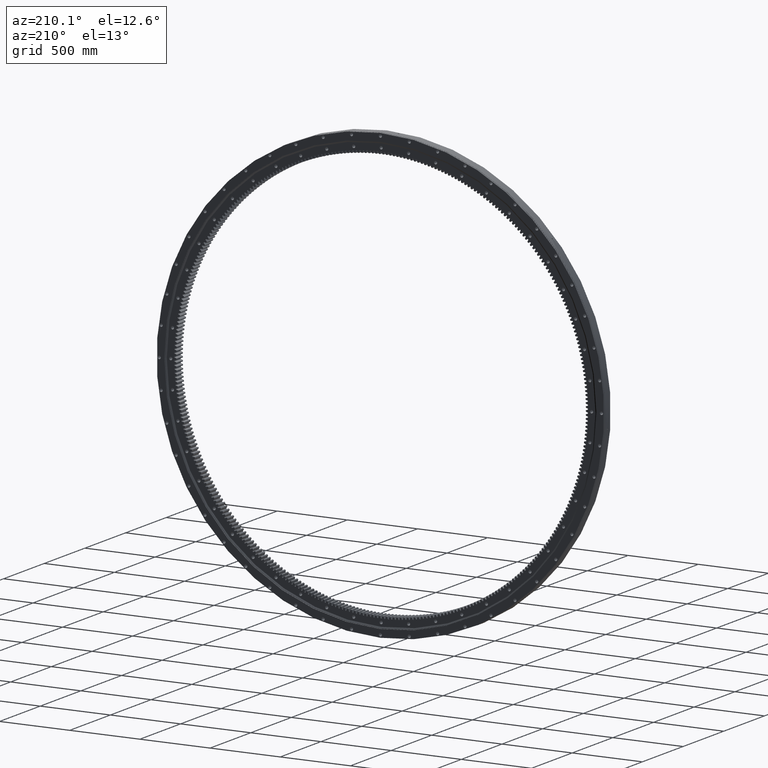
[diagram: clean part render]
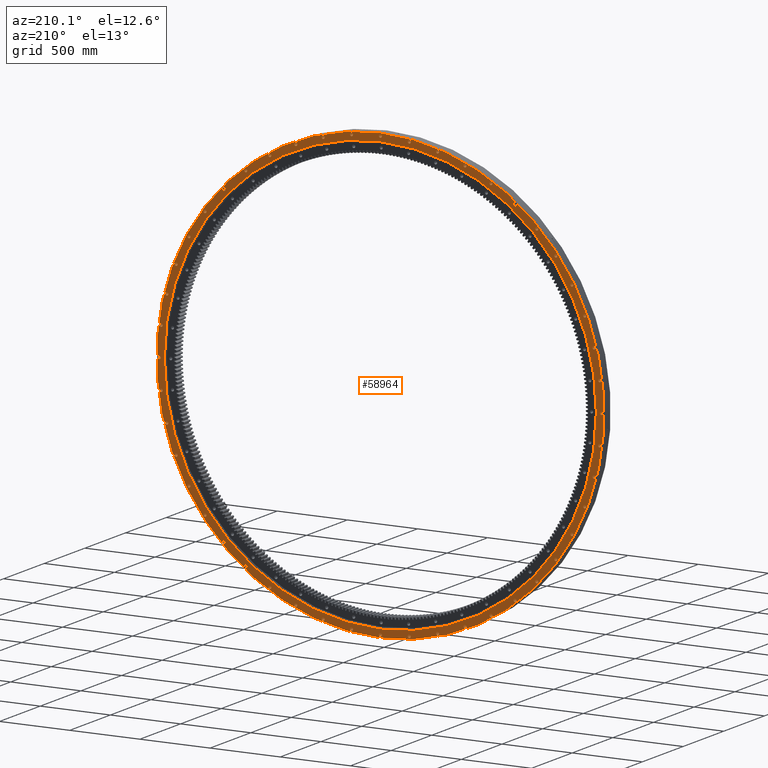
[diagram: same view with one face highlighted and labeled with its STEP entity id]
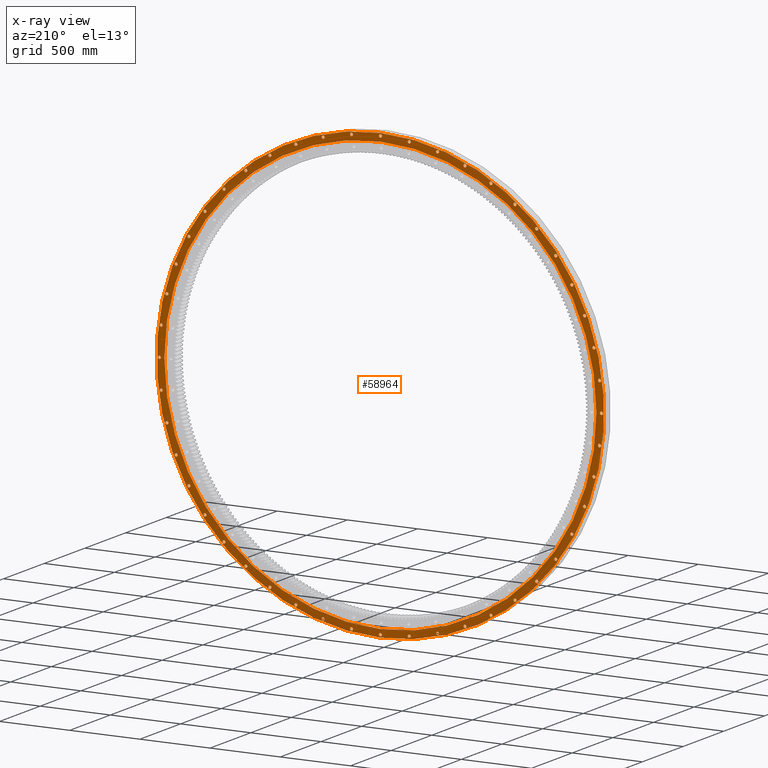
[diagram: x-ray of the same camera — body ghosted, the highlighted face saturated]
A machine part, auxiliary view. The second image highlights one B-rep face of the part: STEP entity #58964.
The next image is the same camera in x-ray: the body ghosted, the highlighted face saturated — about 0% of this face is hidden behind the body in this view.
In plain terms, the highlighted planar face has unit normal (0, -1, -0).
Its self-contained STEP definition (entity closure, byte-faithful):
#18 = CARTESIAN_POINT ( 'NONE',  ( 1564.000000000000000, 45.00000000000036900, 1.737634195176744200E-011 ) ) ;
#47 = AXIS2_PLACEMENT_3D ( 'NONE', #71744, #31727, #78461 ) ;
#165 = ORIENTED_EDGE ( 'NONE', *, *, #8978, .T. ) ;
#284 = ORIENTED_EDGE ( 'NONE', *, *, #2169, .T. ) ;
#334 = ORIENTED_EDGE ( 'NONE', *, *, #14397, .T. ) ;
#420 = VERTEX_POINT ( 'NONE', #71128 ) ;
#573 = DIRECTION ( 'NONE',  ( 1.173697223544192200E-016, -1.000000000000000000, -3.494217355385783800E-017 ) ) ;
#586 = ORIENTED_EDGE ( 'NONE', *, *, #30927, .T. ) ;
#824 = DIRECTION ( 'NONE',  ( 0.9914448613738099400, 0.0000000000000000000, -0.1305261922200558800 ) ) ;
#1004 = AXIS2_PLACEMENT_3D ( 'NONE', #12507, #59221, #19191 ) ;
#1054 = VERTEX_POINT ( 'NONE', #33331 ) ;
#1247 = VERTEX_POINT ( 'NONE', #84454 ) ;
#1362 = FACE_BOUND ( 'NONE', #59552, .T. ) ;
#1377 = CIRCLE ( 'NONE', #61453, 10.99999999999987700 ) ;
#1448 = CARTESIAN_POINT ( 'NONE',  ( -205.5787527465832600, 45.00000000000009900, 1561.525656663751300 ) ) ;
#1472 = EDGE_LOOP ( 'NONE', ( #12628, #49852 ) ) ;
#1479 = VERTEX_POINT ( 'NONE', #53520 ) ;
#1631 = CIRCLE ( 'NONE', #48732, 10.99999999999990200 ) ;
#1667 = CIRCLE ( 'NONE', #27903, 11.00000000000002100 ) ;
#1846 = EDGE_CURVE ( 'NONE', #40797, #68632, #57613, .T. ) ;
#1894 = CARTESIAN_POINT ( 'NONE',  ( 958.7992506887186400, 45.00000000000024900, 1249.531510958707900 ) ) ;
#2127 = CARTESIAN_POINT ( 'NONE',  ( -1249.531510958697700, 45.00000000000000000, 958.7992506887325100 ) ) ;
#2130 = AXIS2_PLACEMENT_3D ( 'NONE', #4342, #51027, #11072 ) ;
#2135 = EDGE_CURVE ( 'NONE', #4812, #51617, #23083, .T. ) ;
#2169 = EDGE_CURVE ( 'NONE', #11986, #38092, #20973, .T. ) ;
#2174 = CARTESIAN_POINT ( 'NONE',  ( -407.6399960364595900, 45.00000000000018500, -1521.333176405285300 ) ) ;
#2372 = VERTEX_POINT ( 'NONE', #37732 ) ;
#2569 = DIRECTION ( 'NONE',  ( 1.173697223544192200E-016, -1.000000000000000000, -3.494217355385783800E-017 ) ) ;
#2636 = VERTEX_POINT ( 'NONE', #12579 ) ;
#2647 = VERTEX_POINT ( 'NONE', #32671 ) ;
#2733 = EDGE_LOOP ( 'NONE', ( #14791, #7264 ) ) ;
#3130 = CIRCLE ( 'NONE', #37442, 11.00000000000001200 ) ;
#3209 = ORIENTED_EDGE ( 'NONE', *, *, #19757, .T. ) ;
#3239 = EDGE_CURVE ( 'NONE', #65075, #63312, #60513, .T. ) ;
#3252 = ORIENTED_EDGE ( 'NONE', *, *, #57810, .T. ) ;
#3345 = CIRCLE ( 'NONE', #59634, 10.99999999999986000 ) ;
#3467 = FACE_BOUND ( 'NONE', #53148, .T. ) ;
#3506 = VERTEX_POINT ( 'NONE', #42634 ) ;
#3559 = CIRCLE ( 'NONE', #60313, 10.99999999999999800 ) ;
#3571 = VERTEX_POINT ( 'NONE', #56729 ) ;
#3636 = AXIS2_PLACEMENT_3D ( 'NONE', #77702, #37680, #84421 ) ;
#3664 = DIRECTION ( 'NONE',  ( -0.2588190451025086900, 0.0000000000000000000, 0.9659258262890714200 ) ) ;
#3715 = EDGE_CURVE ( 'NONE', #46093, #1054, #23931, .T. ) ;
#3780 = ORIENTED_EDGE ( 'NONE', *, *, #74334, .T. ) ;
#4208 = EDGE_CURVE ( 'NONE', #1247, #6134, #17518, .T. ) ;
#4235 = CIRCLE ( 'NONE', #38671, 10.99999999999992200 ) ;
#4341 = CARTESIAN_POINT ( 'NONE',  ( 1113.693180368798300, 45.00000000000027000, 1113.693180368826700 ) ) ;
#4342 = CARTESIAN_POINT ( 'NONE',  ( 1521.333176405277800, 45.00000000000034800, 407.6399960364879000 ) ) ;
#4411 = CARTESIAN_POINT ( 'NONE',  ( -407.6399960364719300, 45.00000000000007800, 1521.333176405282100 ) ) ;
#4502 = CIRCLE ( 'NONE', #9764, 10.99999999999993200 ) ;
#4535 = AXIS2_PLACEMENT_3D ( 'NONE', #9419, #56135, #16056 ) ;
#4571 = EDGE_CURVE ( 'NONE', #57685, #80406, #22742, .T. ) ;
#4683 = DIRECTION ( 'NONE',  ( 1.173697223544192200E-016, -1.000000000000000000, -3.494217355385783800E-017 ) ) ;
#4743 = VERTEX_POINT ( 'NONE', #30536 ) ;
#4786 = CIRCLE ( 'NONE', #7808, 10.99999999999991800 ) ;
#4812 = VERTEX_POINT ( 'NONE', #44226 ) ;
#4954 = EDGE_CURVE ( 'NONE', #3571, #52245, #27225, .T. ) ;
#5251 = CARTESIAN_POINT ( 'NONE',  ( 1521.333176405287100, 45.00000000000036900, -407.6399960364543100 ) ) ;
#5262 = ORIENTED_EDGE ( 'NONE', *, *, #58379, .T. ) ;
#5291 = CIRCLE ( 'NONE', #54267, 10.99999999999991500 ) ;
#5328 = EDGE_CURVE ( 'NONE', #40130, #71216, #37557, .T. ) ;
#5474 = CIRCLE ( 'NONE', #31340, 10.99999999999992200 ) ;
#5544 = FACE_BOUND ( 'NONE', #1472, .T. ) ;
#5579 = CIRCLE ( 'NONE', #80824, 11.00000000000002100 ) ;
#5622 = CARTESIAN_POINT ( 'NONE',  ( 205.5787527465590500, 45.00000000000014200, 1561.525656663754000 ) ) ;
#5642 = DIRECTION ( 'NONE',  ( 0.9238795325112854100, 0.0000000000000000000, -0.3826834323650928900 ) ) ;
#5739 = DIRECTION ( 'NONE',  ( 1.173697223544192200E-016, -1.000000000000000000, -3.494217355385783800E-017 ) ) ;
#5775 = CARTESIAN_POINT ( 'NONE',  ( -1455.110263705273800, 45.00000000000002800, -602.7264059750228900 ) ) ;
#6011 = DIRECTION ( 'NONE',  ( 0.7933533402912362800, 0.0000000000000000000, 0.6087614290087193200 ) ) ;
#6032 = DIRECTION ( 'NONE',  ( 1.173697223544192200E-016, -1.000000000000000000, -3.494217355385783800E-017 ) ) ;
#6049 = AXIS2_PLACEMENT_3D ( 'NONE', #68844, #80595, #40556 ) ;
#6134 = VERTEX_POINT ( 'NONE', #36502 ) ;
#6214 = CARTESIAN_POINT ( 'NONE',  ( -1363.990010960486600, 45.00000000000005000, -787.5000000000070500 ) ) ;
#6393 = EDGE_LOOP ( 'NONE', ( #23016, #45788 ) ) ;
#6554 = DIRECTION ( 'NONE',  ( 1.173697223544192200E-016, -1.000000000000000000, -3.494217355385783800E-017 ) ) ;
#6641 = CARTESIAN_POINT ( 'NONE',  ( -1455.110263705279100, 44.99999999999998600, 602.7264059750111800 ) ) ;
#6845 = CARTESIAN_POINT ( 'NONE',  ( 1521.333176405287100, 45.00000000000036900, -407.6399960364543100 ) ) ;
#6975 = ORIENTED_EDGE ( 'NONE', *, *, #49605, .T. ) ;
#7264 = ORIENTED_EDGE ( 'NONE', *, *, #45749, .T. ) ;
#7649 = FACE_BOUND ( 'NONE', #54359, .T. ) ;
#7745 = VERTEX_POINT ( 'NONE', #52966 ) ;
#7753 = AXIS2_PLACEMENT_3D ( 'NONE', #83617, #43590, #3664 ) ;
#7808 = AXIS2_PLACEMENT_3D ( 'NONE', #76609, #36593, #83335 ) ;
#7815 = DIRECTION ( 'NONE',  ( 1.173697223544192200E-016, -1.000000000000000000, -3.494217355385783800E-017 ) ) ;
#7904 = DIRECTION ( 'NONE',  ( 1.173697223544192200E-016, -1.000000000000000000, -3.494217355385783800E-017 ) ) ;
#7978 = EDGE_CURVE ( 'NONE', #54408, #420, #72680, .T. ) ;
#8088 = CARTESIAN_POINT ( 'NONE',  ( 958.7992506887186400, 45.00000000000024900, 1260.531510958707900 ) ) ;
#8168 = DIRECTION ( 'NONE',  ( -0.1305261922200385000, 0.0000000000000000000, 0.9914448613738121600 ) ) ;
#8191 = ORIENTED_EDGE ( 'NONE', *, *, #63414, .T. ) ;
#8369 = AXIS2_PLACEMENT_3D ( 'NONE', #1448, #48134, #8168 ) ;
#8397 = AXIS2_PLACEMENT_3D ( 'NONE', #62270, #22282, #68974 ) ;
#8521 = CARTESIAN_POINT ( 'NONE',  ( 602.7264059749967400, 45.00000000000019900, 1455.110263705285200 ) ) ;
#8522 = CIRCLE ( 'NONE', #24151, 10.99999999999991800 ) ;
#8620 = DIRECTION ( 'NONE',  ( 0.6087614290087193200, 0.0000000000000000000, 0.7933533402912362800 ) ) ;
#8663 = FACE_OUTER_BOUND ( 'NONE', #8899, .T. ) ;
#8844 = CARTESIAN_POINT ( 'NONE',  ( 205.5787527465590500, 45.00000000000014200, 1572.525656663754000 ) ) ;
#8849 = DIRECTION ( 'NONE',  ( -0.7933533402912313900, 0.0000000000000000000, 0.6087614290087256500 ) ) ;
#8859 = EDGE_LOOP ( 'NONE', ( #34465, #16125 ) ) ;
#8888 = DIRECTION ( 'NONE',  ( -0.2588190451025325600, 0.0000000000000000000, -0.9659258262890652000 ) ) ;
#8899 = EDGE_LOOP ( 'NONE', ( #78198, #13165 ) ) ;
#8945 = VERTEX_POINT ( 'NONE', #58086 ) ;
#8978 = EDGE_CURVE ( 'NONE', #45640, #13125, #70450, .T. ) ;
#9041 = EDGE_CURVE ( 'NONE', #79950, #15502, #30714, .T. ) ;
#9185 = DIRECTION ( 'NONE',  ( 1.173697223544192200E-016, -1.000000000000000000, -3.494217355385783800E-017 ) ) ;
#9196 = EDGE_LOOP ( 'NONE', ( #73118, #3780 ) ) ;
#9364 = ORIENTED_EDGE ( 'NONE', *, *, #57068, .T. ) ;
#9419 = CARTESIAN_POINT ( 'NONE',  ( 205.5787527465934900, 45.00000000000025600, -1561.525656663749900 ) ) ;
#9538 = AXIS2_PLACEMENT_3D ( 'NONE', #18844, #65560, #25572 ) ;
#9565 = DIRECTION ( 'NONE',  ( 1.173697223544192200E-016, -1.000000000000000000, -3.494217355385783800E-017 ) ) ;
#9601 = AXIS2_PLACEMENT_3D ( 'NONE', #6845, #53562, #13515 ) ;
#9742 = FACE_BOUND ( 'NONE', #82615, .T. ) ;
#9764 = AXIS2_PLACEMENT_3D ( 'NONE', #57974, #17945, #64649 ) ;
#9779 = CIRCLE ( 'NONE', #57839, 10.99999999999992900 ) ;
#9864 = EDGE_CURVE ( 'NONE', #13399, #60550, #63004, .T. ) ;
#9929 = CARTESIAN_POINT ( 'NONE',  ( 958.7992506887461600, 45.00000000000033400, -1249.531510958686600 ) ) ;
#10169 = CARTESIAN_POINT ( 'NONE',  ( -205.5787527465832600, 45.00000000000009900, 1561.525656663751300 ) ) ;
#10535 = CIRCLE ( 'NONE', #28155, 10.99999999999989900 ) ;
#10752 = FACE_BOUND ( 'NONE', #6393, .T. ) ;
#10761 = CIRCLE ( 'NONE', #9601, 11.00000000000004100 ) ;
#10837 = DIRECTION ( 'NONE',  ( 1.173697223544192200E-016, -1.000000000000000000, -3.494217355385783800E-017 ) ) ;
#10840 = CARTESIAN_POINT ( 'NONE',  ( -1561.525656663751800, 44.99999999999999300, 205.5787527465760700 ) ) ;
#10901 = DIRECTION ( 'NONE',  ( 1.173697223544192200E-016, -1.000000000000000000, -3.494217355385783800E-017 ) ) ;
#11048 = EDGE_CURVE ( 'NONE', #78252, #33148, #77570, .T. ) ;
#11064 = CARTESIAN_POINT ( 'NONE',  ( 1260.531510958704500, 45.00000000000036200, -958.7992506887230800 ) ) ;
#11071 = DIRECTION ( 'NONE',  ( 0.7071067811865575600, 0.0000000000000000000, 0.7071067811865374700 ) ) ;
#11072 = DIRECTION ( 'NONE',  ( 0.9659258262890689800, 0.0000000000000000000, 0.2588190451025180700 ) ) ;
#11144 = DIRECTION ( 'NONE',  ( -0.2588190451025086900, 0.0000000000000000000, 0.9659258262890714200 ) ) ;
#11563 = CARTESIAN_POINT ( 'NONE',  ( -1113.693180368815100, 45.00000000000000700, 1113.693180368809600 ) ) ;
#11720 = VERTEX_POINT ( 'NONE', #18 ) ;
#11737 = EDGE_LOOP ( 'NONE', ( #21693, #12503 ) ) ;
#11757 = CIRCLE ( 'NONE', #19634, 10.99999999999987700 ) ;
#11840 = FACE_BOUND ( 'NONE', #53453, .T. ) ;
#11899 = DIRECTION ( 'NONE',  ( 1.173697223544192200E-016, -1.000000000000000000, -3.494217355385783800E-017 ) ) ;
#11911 = CARTESIAN_POINT ( 'NONE',  ( -1249.531510958689500, 45.00000000000007100, -958.7992506887424000 ) ) ;
#11912 = CIRCLE ( 'NONE', #52753, 11.00000000000001400 ) ;
#11948 = DIRECTION ( 'NONE',  ( 0.9659258262890677600, 0.0000000000000000000, -0.2588190451025227900 ) ) ;
#11950 = CARTESIAN_POINT ( 'NONE',  ( -787.5000000000022700, 45.00000000000004300, 1374.990010960489400 ) ) ;
#11986 = VERTEX_POINT ( 'NONE', #23603 ) ;
#12062 = CARTESIAN_POINT ( 'NONE',  ( 1352.990010960499100, 45.00000000000036900, -787.4999999999867000 ) ) ;
#12076 = CARTESIAN_POINT ( 'NONE',  ( -1532.333176405283900, 44.99999999999998600, 407.6399960364649400 ) ) ;
#12137 = EDGE_CURVE ( 'NONE', #53887, #80330, #70201, .T. ) ;
#12317 = DIRECTION ( 'NONE',  ( 0.1305261922200509100, 0.0000000000000000000, 0.9914448613738106000 ) ) ;
#12355 = ORIENTED_EDGE ( 'NONE', *, *, #75975, .T. ) ;
#12427 = ORIENTED_EDGE ( 'NONE', *, *, #21867, .T. ) ;
#12476 = DIRECTION ( 'NONE',  ( -0.9238795325112920700, 0.0000000000000000000, -0.3826834323650771800 ) ) ;
#12503 = ORIENTED_EDGE ( 'NONE', *, *, #12647, .T. ) ;
#12505 = DIRECTION ( 'NONE',  ( 1.173697223544192200E-016, -1.000000000000000000, -3.494217355385783800E-017 ) ) ;
#12507 = CARTESIAN_POINT ( 'NONE',  ( -5.281637505948885300E-015, 45.00000000000017800, 7.139817916727550900E-016 ) ) ;
#12564 = VERTEX_POINT ( 'NONE', #40144 ) ;
#12579 = CARTESIAN_POINT ( 'NONE',  ( -1550.525656663750600, 45.00000000000000700, -205.5787527465887500 ) ) ;
#12628 = ORIENTED_EDGE ( 'NONE', *, *, #74241, .T. ) ;
#12647 = EDGE_CURVE ( 'NONE', #60550, #13399, #18935, .T. ) ;
#12689 = DIRECTION ( 'NONE',  ( 1.173697223544192200E-016, -1.000000000000000000, -3.494217355385783800E-017 ) ) ;
#12794 = FACE_BOUND ( 'NONE', #23025, .T. ) ;
#12818 = EDGE_CURVE ( 'NONE', #56967, #4743, #8522, .T. ) ;
#12829 = CIRCLE ( 'NONE', #52364, 10.99999999999999800 ) ;
#12844 = EDGE_CURVE ( 'NONE', #35319, #45650, #59660, .T. ) ;
#12892 = DIRECTION ( 'NONE',  ( -0.8660254037844460400, 0.0000000000000000000, -0.4999999999999871800 ) ) ;
#13098 = CARTESIAN_POINT ( 'NONE',  ( -1249.531510958689500, 45.00000000000007100, -958.7992506887424000 ) ) ;
#13108 = EDGE_CURVE ( 'NONE', #59401, #56886, #44974, .T. ) ;
#13125 = VERTEX_POINT ( 'NONE', #60819 ) ;
#13165 = ORIENTED_EDGE ( 'NONE', *, *, #23537, .T. ) ;
#13271 = CARTESIAN_POINT ( 'NONE',  ( -1260.531510958689500, 45.00000000000007100, -958.7992506887424000 ) ) ;
#13273 = CARTESIAN_POINT ( 'NONE',  ( -1113.693180368805800, 45.00000000000008500, -1113.693180368818700 ) ) ;
#13304 = DIRECTION ( 'NONE',  ( -0.9238795325112818500, 0.0000000000000000000, 0.3826834323651014900 ) ) ;
#13399 = VERTEX_POINT ( 'NONE', #71572 ) ;
#13468 = EDGE_CURVE ( 'NONE', #35056, #63963, #4235, .T. ) ;
#13515 = DIRECTION ( 'NONE',  ( 0.9659258262890677600, 0.0000000000000000000, -0.2588190451025227900 ) ) ;
#13580 = ORIENTED_EDGE ( 'NONE', *, *, #48197, .T. ) ;
#13685 = EDGE_LOOP ( 'NONE', ( #26124, #78969 ) ) ;
#13688 = DIRECTION ( 'NONE',  ( 1.173697223544192200E-016, -1.000000000000000000, -3.494217355385783800E-017 ) ) ;
#13768 = CARTESIAN_POINT ( 'NONE',  ( 602.7264059750285700, 45.00000000000029800, -1466.110263705271100 ) ) ;
#13817 = CARTESIAN_POINT ( 'NONE',  ( 1113.693180368822600, 45.00000000000035500, -1113.693180368801900 ) ) ;
#13918 = AXIS2_PLACEMENT_3D ( 'NONE', #85975, #45973, #6011 ) ;
#13930 = AXIS2_PLACEMENT_3D ( 'NONE', #52715, #12689, #59397 ) ;
#14008 = VERTEX_POINT ( 'NONE', #16407 ) ;
#14068 = VERTEX_POINT ( 'NONE', #70713 ) ;
#14397 = EDGE_CURVE ( 'NONE', #58591, #36100, #25980, .T. ) ;
#14398 = CARTESIAN_POINT ( 'NONE',  ( 205.5787527465590500, 45.00000000000014200, 1561.525656663754000 ) ) ;
#14563 = EDGE_CURVE ( 'NONE', #2636, #65905, #51047, .T. ) ;
#14791 = ORIENTED_EDGE ( 'NONE', *, *, #29789, .T. ) ;
#14870 = FACE_BOUND ( 'NONE', #77678, .T. ) ;
#14987 = CARTESIAN_POINT ( 'NONE',  ( 8.014475067958992800E-014, 45.00000000000012100, 1538.904999999999700 ) ) ;
#15153 = DIRECTION ( 'NONE',  ( 0.3826834323650928900, 0.0000000000000000000, 0.9238795325112854100 ) ) ;
#15219 = CARTESIAN_POINT ( 'NONE',  ( 602.7264059749967400, 45.00000000000019900, 1455.110263705285200 ) ) ;
#15502 = VERTEX_POINT ( 'NONE', #67535 ) ;
#15577 = CARTESIAN_POINT ( 'NONE',  ( 1510.333176405277800, 45.00000000000034800, 407.6399960364879000 ) ) ;
#15721 = CARTESIAN_POINT ( 'NONE',  ( -1510.333176405284100, 44.99999999999998600, 407.6399960364649400 ) ) ;
#16056 = DIRECTION ( 'NONE',  ( 0.1305261922200459400, 0.0000000000000000000, -0.9914448613738111600 ) ) ;
#16125 = ORIENTED_EDGE ( 'NONE', *, *, #62528, .T. ) ;
#16168 = AXIS2_PLACEMENT_3D ( 'NONE', #47861, #7904, #54611 ) ;
#16231 = VERTEX_POINT ( 'NONE', #66716 ) ;
#16264 = AXIS2_PLACEMENT_3D ( 'NONE', #1894, #48561, #8620 ) ;
#16292 = AXIS2_PLACEMENT_3D ( 'NONE', #13817, #60542, #20557 ) ;
#16407 = CARTESIAN_POINT ( 'NONE',  ( 1550.525656663753600, 45.00000000000036900, -205.5787527465644800 ) ) ;
#16582 = DIRECTION ( 'NONE',  ( 0.6087614290087193200, 0.0000000000000000000, -0.7933533402912362800 ) ) ;
#16833 = DIRECTION ( 'NONE',  ( -0.1305261922200385000, 0.0000000000000000000, 0.9914448613738121600 ) ) ;
#16967 = FACE_BOUND ( 'NONE', #28833, .T. ) ;
#17120 = AXIS2_PLACEMENT_3D ( 'NONE', #13273, #60019, #20008 ) ;
#17157 = CARTESIAN_POINT ( 'NONE',  ( 1466.110263705283200, 45.00000000000036900, -602.7264059750017400 ) ) ;
#17388 = EDGE_CURVE ( 'NONE', #39614, #67713, #65363, .T. ) ;
#17485 = DIRECTION ( 'NONE',  ( -0.9914448613738088300, 0.0000000000000000000, 0.1305261922200632900 ) ) ;
#17518 = CIRCLE ( 'NONE', #18923, 10.99999999999994100 ) ;
#17674 = EDGE_LOOP ( 'NONE', ( #26581, #45201 ) ) ;
#17945 = DIRECTION ( 'NONE',  ( 1.173697223544192200E-016, -1.000000000000000000, -3.494217355385783800E-017 ) ) ;
#18060 = ORIENTED_EDGE ( 'NONE', *, *, #38574, .T. ) ;
#18086 = VERTEX_POINT ( 'NONE', #14987 ) ;
#18097 = CARTESIAN_POINT ( 'NONE',  ( -1510.333176405280700, 45.00000000000001400, -407.6399960364772100 ) ) ;
#18208 = DIRECTION ( 'NONE',  ( -0.7071067811865374700, 0.0000000000000000000, 0.7071067811865575600 ) ) ;
#18334 = EDGE_LOOP ( 'NONE', ( #41557, #3252 ) ) ;
#18403 = DIRECTION ( 'NONE',  ( 1.173697223544192200E-016, -1.000000000000000000, -3.494217355385783800E-017 ) ) ;
#18457 = DIRECTION ( 'NONE',  ( 1.173697223544192200E-016, -1.000000000000000000, -3.494217355385783800E-017 ) ) ;
#18462 = CIRCLE ( 'NONE', #29443, 10.99999999999995900 ) ;
#18475 = AXIS2_PLACEMENT_3D ( 'NONE', #6641, #53357, #13304 ) ;
#18545 = CARTESIAN_POINT ( 'NONE',  ( 1113.693180368822600, 45.00000000000035500, -1113.693180368801900 ) ) ;
#18581 = DIRECTION ( 'NONE',  ( -0.7933533402912410500, 0.0000000000000000000, -0.6087614290087130000 ) ) ;
#18779 = CARTESIAN_POINT ( 'NONE',  ( -1113.693180368815100, 45.00000000000000700, 1124.693180368809600 ) ) ;
#18835 = VERTEX_POINT ( 'NONE', #44982 ) ;
#18844 = CARTESIAN_POINT ( 'NONE',  ( -5.281637505948885300E-015, 45.00000000000017800, 1.572397809923608900E-015 ) ) ;
#18923 = AXIS2_PLACEMENT_3D ( 'NONE', #10840, #57542, #17485 ) ;
#18935 = CIRCLE ( 'NONE', #30243, 10.99999999999984000 ) ;
#19070 = FACE_BOUND ( 'NONE', #11737, .T. ) ;
#19191 = DIRECTION ( 'NONE',  ( 5.551115123125782700E-017, -3.482506350768998200E-017, 1.000000000000000000 ) ) ;
#19402 = CIRCLE ( 'NONE', #22864, 10.99999999999992900 ) ;
#19410 = ORIENTED_EDGE ( 'NONE', *, *, #75114, .T. ) ;
#19562 = EDGE_CURVE ( 'NONE', #14008, #69467, #19402, .T. ) ;
#19607 = CARTESIAN_POINT ( 'NONE',  ( -2.287796363027740200E-011, 45.00000000000012100, 1585.999999999999800 ) ) ;
#19634 = AXIS2_PLACEMENT_3D ( 'NONE', #58443, #18403, #65117 ) ;
#19733 = CARTESIAN_POINT ( 'NONE',  ( -407.6399960364595900, 45.00000000000018500, -1532.333176405285300 ) ) ;
#19757 = EDGE_CURVE ( 'NONE', #4743, #56967, #4786, .T. ) ;
#19815 = DIRECTION ( 'NONE',  ( -0.7933533402912410500, 0.0000000000000000000, -0.6087614290087130000 ) ) ;
#19863 = ORIENTED_EDGE ( 'NONE', *, *, #49405, .T. ) ;
#20008 = DIRECTION ( 'NONE',  ( -0.7071067811865575600, 0.0000000000000000000, -0.7071067811865374700 ) ) ;
#20010 = CIRCLE ( 'NONE', #82296, 11.00000000000001200 ) ;
#20087 = CARTESIAN_POINT ( 'NONE',  ( -1374.990010960486400, 45.00000000000005000, -787.5000000000070500 ) ) ;
#20094 = AXIS2_PLACEMENT_3D ( 'NONE', #29680, #76366, #36347 ) ;
#20183 = EDGE_LOOP ( 'NONE', ( #24617, #56575 ) ) ;
#20297 = EDGE_CURVE ( 'NONE', #21274, #16231, #42235, .T. ) ;
#20376 = CARTESIAN_POINT ( 'NONE',  ( -1238.531510958697900, 45.00000000000000000, 958.7992506887325100 ) ) ;
#20534 = CARTESIAN_POINT ( 'NONE',  ( 787.4999999999818100, 45.00000000000022000, 1363.990010960501400 ) ) ;
#20557 = DIRECTION ( 'NONE',  ( 0.7071067811865374700, 0.0000000000000000000, -0.7071067811865575600 ) ) ;
#20561 = DIRECTION ( 'NONE',  ( -1.173697223544192200E-016, 1.000000000000000000, 3.494217355385783800E-017 ) ) ;
#20598 = VERTEX_POINT ( 'NONE', #45822 ) ;
#20720 = ORIENTED_EDGE ( 'NONE', *, *, #13108, .T. ) ;
#20973 = CIRCLE ( 'NONE', #48472, 10.99999999999987700 ) ;
#20993 = CARTESIAN_POINT ( 'NONE',  ( -1455.110263705273800, 45.00000000000002800, -602.7264059750228900 ) ) ;
#21017 = EDGE_CURVE ( 'NONE', #38224, #83738, #53706, .T. ) ;
#21126 = AXIS2_PLACEMENT_3D ( 'NONE', #46517, #6554, #53263 ) ;
#21130 = DIRECTION ( 'NONE',  ( 0.1305261922200509100, 0.0000000000000000000, 0.9914448613738106000 ) ) ;
#21163 = CARTESIAN_POINT ( 'NONE',  ( 1.186984476057318000E-011, 45.00000000000023400, -1575.000000000000000 ) ) ;
#21184 = FACE_BOUND ( 'NONE', #85006, .T. ) ;
#21199 = EDGE_CURVE ( 'NONE', #65905, #2636, #58906, .T. ) ;
#21212 = CARTESIAN_POINT ( 'NONE',  ( -407.6399960364595900, 45.00000000000018500, -1521.333176405285300 ) ) ;
#21226 = CARTESIAN_POINT ( 'NONE',  ( -958.7992506887274000, 45.00000000000010700, -1260.531510958701100 ) ) ;
#21274 = VERTEX_POINT ( 'NONE', #48945 ) ;
#21313 = EDGE_CURVE ( 'NONE', #1479, #25064, #68259, .T. ) ;
#21336 = VERTEX_POINT ( 'NONE', #80173 ) ;
#21583 = CARTESIAN_POINT ( 'NONE',  ( -1113.693180368815100, 45.00000000000000700, 1113.693180368809600 ) ) ;
#21693 = ORIENTED_EDGE ( 'NONE', *, *, #9864, .T. ) ;
#21839 = CARTESIAN_POINT ( 'NONE',  ( 1444.110263705269500, 45.00000000000033400, 602.7264059750336900 ) ) ;
#21867 = EDGE_CURVE ( 'NONE', #13125, #45640, #10761, .T. ) ;
#21978 = DIRECTION ( 'NONE',  ( 0.3826834323650928900, 0.0000000000000000000, 0.9238795325112854100 ) ) ;
#22009 = VERTEX_POINT ( 'NONE', #81521 ) ;
#22282 = DIRECTION ( 'NONE',  ( 1.173697223544192200E-016, -1.000000000000000000, -3.494217355385783800E-017 ) ) ;
#22322 = EDGE_CURVE ( 'NONE', #38092, #11986, #11757, .T. ) ;
#22399 = AXIS2_PLACEMENT_3D ( 'NONE', #9929, #56649, #16582 ) ;
#22584 = VERTEX_POINT ( 'NONE', #68004 ) ;
#22592 = EDGE_CURVE ( 'NONE', #21336, #47704, #20010, .T. ) ;
#22742 = CIRCLE ( 'NONE', #70965, 11.00000000000001400 ) ;
#22864 = AXIS2_PLACEMENT_3D ( 'NONE', #47775, #7815, #54523 ) ;
#23000 = CIRCLE ( 'NONE', #3636, 10.99999999999989900 ) ;
#23016 = ORIENTED_EDGE ( 'NONE', *, *, #83289, .T. ) ;
#23025 = EDGE_LOOP ( 'NONE', ( #30294, #70443 ) ) ;
#23083 = CIRCLE ( 'NONE', #17120, 10.99999999999992200 ) ;
#23108 = AXIS2_PLACEMENT_3D ( 'NONE', #70322, #30316, #77020 ) ;
#23250 = CARTESIAN_POINT ( 'NONE',  ( 1561.525656663749300, 45.00000000000035500, 205.5787527465989200 ) ) ;
#23306 = FACE_BOUND ( 'NONE', #2733, .T. ) ;
#23416 = ORIENTED_EDGE ( 'NONE', *, *, #21017, .T. ) ;
#23457 = CARTESIAN_POINT ( 'NONE',  ( -1532.333176405280500, 45.00000000000001400, -407.6399960364772100 ) ) ;
#23537 = EDGE_CURVE ( 'NONE', #15502, #79950, #59751, .T. ) ;
#23578 = CIRCLE ( 'NONE', #39744, 10.99999999999999800 ) ;
#23603 = CARTESIAN_POINT ( 'NONE',  ( -787.4999999999914700, 45.00000000000013500, -1352.990010960496200 ) ) ;
#23931 = CIRCLE ( 'NONE', #49125, 10.99999999999993100 ) ;
#24139 = ORIENTED_EDGE ( 'NONE', *, *, #76522, .T. ) ;
#24151 = AXIS2_PLACEMENT_3D ( 'NONE', #23250, #69925, #29924 ) ;
#24373 = VERTEX_POINT ( 'NONE', #50010 ) ;
#24519 = CIRCLE ( 'NONE', #9538, 1538.904999999999700 ) ;
#24617 = ORIENTED_EDGE ( 'NONE', *, *, #29246, .T. ) ;
#24726 = AXIS2_PLACEMENT_3D ( 'NONE', #77784, #37770, #84499 ) ;
#24728 = ORIENTED_EDGE ( 'NONE', *, *, #22322, .T. ) ;
#24755 = EDGE_LOOP ( 'NONE', ( #59451, #586 ) ) ;
#24897 = ORIENTED_EDGE ( 'NONE', *, *, #37165, .T. ) ;
#25016 = VERTEX_POINT ( 'NONE', #79354 ) ;
#25064 = VERTEX_POINT ( 'NONE', #20087 ) ;
#25096 = CARTESIAN_POINT ( 'NONE',  ( 205.5787527465934900, 45.00000000000025600, -1572.525656663749700 ) ) ;
#25299 = DIRECTION ( 'NONE',  ( 0.7071067811865374700, 0.0000000000000000000, -0.7071067811865575600 ) ) ;
#25394 = FACE_BOUND ( 'NONE', #74934, .T. ) ;
#25572 = DIRECTION ( 'NONE',  ( 5.551115123125782700E-017, -3.607185058938520400E-017, 1.000000000000000000 ) ) ;
#25609 = CARTESIAN_POINT ( 'NONE',  ( -1521.333176405280700, 45.00000000000001400, -407.6399960364772100 ) ) ;
#25622 = CIRCLE ( 'NONE', #62575, 10.99999999999992200 ) ;
#25823 = CARTESIAN_POINT ( 'NONE',  ( 1113.693180368798300, 45.00000000000027000, 1113.693180368826700 ) ) ;
#25856 = CIRCLE ( 'NONE', #36671, 10.99999999999984000 ) ;
#25980 = CIRCLE ( 'NONE', #73943, 10.99999999999986000 ) ;
#26021 = DIRECTION ( 'NONE',  ( 1.173697223544192200E-016, -1.000000000000000000, -3.494217355385783800E-017 ) ) ;
#26124 = ORIENTED_EDGE ( 'NONE', *, *, #12137, .T. ) ;
#26128 = CARTESIAN_POINT ( 'NONE',  ( -602.7264059750176600, 45.00000000000006400, 1455.110263705275900 ) ) ;
#26148 = CIRCLE ( 'NONE', #57928, 10.99999999999999800 ) ;
#26169 = ORIENTED_EDGE ( 'NONE', *, *, #50146, .T. ) ;
#26375 = FACE_BOUND ( 'NONE', #33069, .T. ) ;
#26501 = CIRCLE ( 'NONE', #81822, 11.00000000000001400 ) ;
#26581 = ORIENTED_EDGE ( 'NONE', *, *, #12844, .T. ) ;
#26799 = EDGE_CURVE ( 'NONE', #80330, #53887, #81081, .T. ) ;
#27172 = DIRECTION ( 'NONE',  ( 1.173697223544192200E-016, -1.000000000000000000, -3.494217355385783800E-017 ) ) ;
#27225 = CIRCLE ( 'NONE', #13918, 10.99999999999993100 ) ;
#27256 = DIRECTION ( 'NONE',  ( 0.4999999999999947300, 0.0000000000000000000, 0.8660254037844417100 ) ) ;
#27257 = DIRECTION ( 'NONE',  ( 1.173697223544192200E-016, -1.000000000000000000, -3.494217355385783800E-017 ) ) ;
#27321 = ORIENTED_EDGE ( 'NONE', *, *, #21199, .T. ) ;
#27469 = FACE_BOUND ( 'NONE', #77674, .T. ) ;
#27684 = CARTESIAN_POINT ( 'NONE',  ( 1455.110263705283400, 45.00000000000036900, -602.7264059750017400 ) ) ;
#27702 = DIRECTION ( 'NONE',  ( -0.9238795325112920700, 0.0000000000000000000, -0.3826834323650771800 ) ) ;
#27874 = DIRECTION ( 'NONE',  ( -7.038473828917601800E-015, 0.0000000000000000000, -1.000000000000000000 ) ) ;
#27903 = AXIS2_PLACEMENT_3D ( 'NONE', #30352, #77053, #37028 ) ;
#27925 = DIRECTION ( 'NONE',  ( -0.2588190451025325600, 0.0000000000000000000, -0.9659258262890652000 ) ) ;
#27969 = AXIS2_PLACEMENT_3D ( 'NONE', #52526, #12505, #59219 ) ;
#28155 = AXIS2_PLACEMENT_3D ( 'NONE', #79060, #39048, #85792 ) ;
#28287 = DIRECTION ( 'NONE',  ( -0.7071067811865374700, 0.0000000000000000000, 0.7071067811865575600 ) ) ;
#28306 = DIRECTION ( 'NONE',  ( 1.173697223544192200E-016, -1.000000000000000000, -3.494217355385783800E-017 ) ) ;
#28316 = CIRCLE ( 'NONE', #33481, 10.99999999999999800 ) ;
#28392 = DIRECTION ( 'NONE',  ( 1.173697223544192200E-016, -1.000000000000000000, -3.494217355385783800E-017 ) ) ;
#28421 = CARTESIAN_POINT ( 'NONE',  ( -787.5000000000022700, 45.00000000000004300, 1352.990010960489600 ) ) ;
#28422 = VERTEX_POINT ( 'NONE', #80256 ) ;
#28466 = FACE_BOUND ( 'NONE', #52452, .T. ) ;
#28603 = ORIENTED_EDGE ( 'NONE', *, *, #82034, .T. ) ;
#28625 = CARTESIAN_POINT ( 'NONE',  ( 1.186984476057318000E-011, 45.00000000000023400, -1575.000000000000000 ) ) ;
#28708 = ORIENTED_EDGE ( 'NONE', *, *, #4954, .T. ) ;
#28833 = EDGE_LOOP ( 'NONE', ( #63207, #74319 ) ) ;
#28846 = CARTESIAN_POINT ( 'NONE',  ( 1532.333176405277800, 45.00000000000034800, 407.6399960364879000 ) ) ;
#28940 = DIRECTION ( 'NONE',  ( 1.173697223544192200E-016, -1.000000000000000000, -3.494217355385783800E-017 ) ) ;
#29029 = VERTEX_POINT ( 'NONE', #28846 ) ;
#29234 = CARTESIAN_POINT ( 'NONE',  ( 407.6399960364490200, 45.00000000000017100, 1521.333176405288200 ) ) ;
#29246 = EDGE_CURVE ( 'NONE', #71216, #40130, #3559, .T. ) ;
#29381 = VERTEX_POINT ( 'NONE', #13271 ) ;
#29443 = AXIS2_PLACEMENT_3D ( 'NONE', #75620, #35623, #82358 ) ;
#29526 = DIRECTION ( 'NONE',  ( 1.173697223544192200E-016, -1.000000000000000000, -3.494217355385783800E-017 ) ) ;
#29629 = CARTESIAN_POINT ( 'NONE',  ( 1444.110263705283400, 45.00000000000036900, -602.7264059750017400 ) ) ;
#29680 = CARTESIAN_POINT ( 'NONE',  ( 1363.990010960498900, 45.00000000000036900, -787.4999999999867000 ) ) ;
#29769 = DIRECTION ( 'NONE',  ( 1.173697223544192200E-016, -1.000000000000000000, -3.494217355385783800E-017 ) ) ;
#29789 = EDGE_CURVE ( 'NONE', #24373, #29809, #1377, .T. ) ;
#29809 = VERTEX_POINT ( 'NONE', #12062 ) ;
#29919 = VERTEX_POINT ( 'NONE', #33008 ) ;
#29924 = DIRECTION ( 'NONE',  ( 0.9914448613738108300, 0.0000000000000000000, 0.1305261922200484400 ) ) ;
#30152 = CARTESIAN_POINT ( 'NONE',  ( 1575.000000000000000, 45.00000000000036900, 1.737578190456699100E-011 ) ) ;
#30243 = AXIS2_PLACEMENT_3D ( 'NONE', #21212, #67914, #27925 ) ;
#30294 = ORIENTED_EDGE ( 'NONE', *, *, #56707, .T. ) ;
#30316 = DIRECTION ( 'NONE',  ( 1.173697223544192200E-016, -1.000000000000000000, -3.494217355385783800E-017 ) ) ;
#30352 = CARTESIAN_POINT ( 'NONE',  ( 602.7264059750285700, 45.00000000000029800, -1455.110263705271300 ) ) ;
#30536 = CARTESIAN_POINT ( 'NONE',  ( 1550.525656663749300, 45.00000000000035500, 205.5787527465989200 ) ) ;
#30551 = FACE_BOUND ( 'NONE', #63646, .T. ) ;
#30714 = CIRCLE ( 'NONE', #1004, 1594.000000000000000 ) ;
#30793 = AXIS2_PLACEMENT_3D ( 'NONE', #33625, #80347, #40331 ) ;
#30872 = CARTESIAN_POINT ( 'NONE',  ( 787.5000000000117100, 45.00000000000032000, -1363.990010960483900 ) ) ;
#30927 = EDGE_CURVE ( 'NONE', #35397, #54317, #50296, .T. ) ;
#31069 = CARTESIAN_POINT ( 'NONE',  ( -1585.999999999999800, 44.99999999999999300, -6.373910844390819900E-012 ) ) ;
#31180 = AXIS2_PLACEMENT_3D ( 'NONE', #77605, #37597, #84320 ) ;
#31340 = AXIS2_PLACEMENT_3D ( 'NONE', #14398, #61125, #21130 ) ;
#31522 = CARTESIAN_POINT ( 'NONE',  ( 958.7992506887461600, 45.00000000000033400, -1260.531510958686600 ) ) ;
#31727 = DIRECTION ( 'NONE',  ( 1.173697223544192200E-016, -1.000000000000000000, -3.494217355385783800E-017 ) ) ;
#31774 = DIRECTION ( 'NONE',  ( 1.173697223544192200E-016, -1.000000000000000000, -3.494217355385783800E-017 ) ) ;
#32050 = AXIS2_PLACEMENT_3D ( 'NONE', #28625, #75311, #35280 ) ;
#32289 = DIRECTION ( 'NONE',  ( -0.9659258262890714200, 0.0000000000000000000, -0.2588190451025086900 ) ) ;
#32294 = VERTEX_POINT ( 'NONE', #21226 ) ;
#32496 = VERTEX_POINT ( 'NONE', #83942 ) ;
#32503 = DIRECTION ( 'NONE',  ( 0.7071067811865575600, 0.0000000000000000000, 0.7071067811865374700 ) ) ;
#32618 = FACE_BOUND ( 'NONE', #43491, .T. ) ;
#32671 = CARTESIAN_POINT ( 'NONE',  ( -1260.531510958697700, 45.00000000000000000, 958.7992506887325100 ) ) ;
#32765 = EDGE_CURVE ( 'NONE', #54317, #35397, #41573, .T. ) ;
#32783 = DIRECTION ( 'NONE',  ( -0.3826834323650771800, 0.0000000000000000000, 0.9238795325112920700 ) ) ;
#32859 = EDGE_LOOP ( 'NONE', ( #46055, #74895 ) ) ;
#33008 = CARTESIAN_POINT ( 'NONE',  ( 602.7264059750285700, 45.00000000000029800, -1444.110263705271300 ) ) ;
#33069 = EDGE_LOOP ( 'NONE', ( #34232, #43487 ) ) ;
#33148 = VERTEX_POINT ( 'NONE', #84687 ) ;
#33214 = CIRCLE ( 'NONE', #75314, 10.99999999999992200 ) ;
#33331 = CARTESIAN_POINT ( 'NONE',  ( 958.7992506887186400, 45.00000000000024900, 1238.531510958708200 ) ) ;
#33393 = EDGE_CURVE ( 'NONE', #46491, #55149, #63498, .T. ) ;
#33481 = AXIS2_PLACEMENT_3D ( 'NONE', #40467, #573, #47237 ) ;
#33509 = ORIENTED_EDGE ( 'NONE', *, *, #3715, .T. ) ;
#33625 = CARTESIAN_POINT ( 'NONE',  ( -205.5787527465699300, 45.00000000000021300, -1561.525656663752700 ) ) ;
#33800 = CARTESIAN_POINT ( 'NONE',  ( 1363.990010960481200, 45.00000000000031300, 787.5000000000166000 ) ) ;
#33912 = ORIENTED_EDGE ( 'NONE', *, *, #17388, .T. ) ;
#34232 = ORIENTED_EDGE ( 'NONE', *, *, #45959, .T. ) ;
#34248 = AXIS2_PLACEMENT_3D ( 'NONE', #42473, #2569, #49247 ) ;
#34349 = DIRECTION ( 'NONE',  ( 0.9238795325112854100, 0.0000000000000000000, -0.3826834323650928900 ) ) ;
#34465 = ORIENTED_EDGE ( 'NONE', *, *, #38388, .T. ) ;
#34596 = DIRECTION ( 'NONE',  ( 1.173697223544192200E-016, -1.000000000000000000, -3.494217355385783800E-017 ) ) ;
#34608 = AXIS2_PLACEMENT_3D ( 'NONE', #67158, #27172, #73818 ) ;
#34698 = FACE_BOUND ( 'NONE', #40106, .T. ) ;
#34763 = CARTESIAN_POINT ( 'NONE',  ( -958.7992506887274000, 45.00000000000010700, -1249.531510958701300 ) ) ;
#34907 = CARTESIAN_POINT ( 'NONE',  ( 787.4999999999818100, 45.00000000000022000, 1363.990010960501400 ) ) ;
#35056 = VERTEX_POINT ( 'NONE', #8844 ) ;
#35086 = ORIENTED_EDGE ( 'NONE', *, *, #20297, .T. ) ;
#35164 = DIRECTION ( 'NONE',  ( 1.173697223544192200E-016, -1.000000000000000000, -3.494217355385783800E-017 ) ) ;
#35208 = EDGE_CURVE ( 'NONE', #3506, #55728, #26148, .T. ) ;
#35280 = DIRECTION ( 'NONE',  ( -7.038473828917601800E-015, 0.0000000000000000000, -1.000000000000000000 ) ) ;
#35319 = VERTEX_POINT ( 'NONE', #79065 ) ;
#35321 = AXIS2_PLACEMENT_3D ( 'NONE', #60545, #20561, #67257 ) ;
#35378 = AXIS2_PLACEMENT_3D ( 'NONE', #76364, #36346, #83093 ) ;
#35397 = VERTEX_POINT ( 'NONE', #79925 ) ;
#35416 = AXIS2_PLACEMENT_3D ( 'NONE', #5775, #52507, #12476 ) ;
#35446 = ORIENTED_EDGE ( 'NONE', *, *, #66294, .T. ) ;
#35623 = DIRECTION ( 'NONE',  ( 1.173697223544192200E-016, -1.000000000000000000, -3.494217355385783800E-017 ) ) ;
#35715 = DIRECTION ( 'NONE',  ( 1.173697223544192200E-016, -1.000000000000000000, -3.494217355385783800E-017 ) ) ;
#35720 = ORIENTED_EDGE ( 'NONE', *, *, #38614, .T. ) ;
#35899 = DIRECTION ( 'NONE',  ( 0.2588190451025180700, 0.0000000000000000000, 0.9659258262890689800 ) ) ;
#36100 = VERTEX_POINT ( 'NONE', #49213 ) ;
#36346 = DIRECTION ( 'NONE',  ( 1.173697223544192200E-016, -1.000000000000000000, -3.494217355385783800E-017 ) ) ;
#36347 = DIRECTION ( 'NONE',  ( 0.8660254037844322700, 0.0000000000000000000, -0.5000000000000111000 ) ) ;
#36424 = ORIENTED_EDGE ( 'NONE', *, *, #45271, .T. ) ;
#36502 = CARTESIAN_POINT ( 'NONE',  ( -1572.525656663751800, 44.99999999999999300, 205.5787527465760700 ) ) ;
#36593 = DIRECTION ( 'NONE',  ( 1.173697223544192200E-016, -1.000000000000000000, -3.494217355385783800E-017 ) ) ;
#36671 = AXIS2_PLACEMENT_3D ( 'NONE', #75184, #35164, #81910 ) ;
#36673 = CARTESIAN_POINT ( 'NONE',  ( 1455.110263705269300, 45.00000000000033400, 602.7264059750336900 ) ) ;
#36690 = CIRCLE ( 'NONE', #6049, 10.99999999999989900 ) ;
#36741 = EDGE_CURVE ( 'NONE', #36963, #18086, #83334, .T. ) ;
#36789 = FACE_BOUND ( 'NONE', #58456, .T. ) ;
#36825 = DIRECTION ( 'NONE',  ( 1.000000000000000000, 0.0000000000000000000, -3.546992490074276000E-015 ) ) ;
#36881 = DIRECTION ( 'NONE',  ( 1.173697223544192200E-016, -1.000000000000000000, -3.494217355385783800E-017 ) ) ;
#36963 = VERTEX_POINT ( 'NONE', #55300 ) ;
#37028 = DIRECTION ( 'NONE',  ( 0.3826834323650771800, 0.0000000000000000000, -0.9238795325112920700 ) ) ;
#37077 = CIRCLE ( 'NONE', #48618, 11.00000000000002700 ) ;
#37147 = CARTESIAN_POINT ( 'NONE',  ( -602.7264059750176600, 45.00000000000006400, 1466.110263705275900 ) ) ;
#37165 = EDGE_CURVE ( 'NONE', #52245, #3571, #73835, .T. ) ;
#37442 = AXIS2_PLACEMENT_3D ( 'NONE', #77807, #37789, #84514 ) ;
#37557 = CIRCLE ( 'NONE', #43583, 10.99999999999999800 ) ;
#37580 = DIRECTION ( 'NONE',  ( 0.4999999999999947300, 0.0000000000000000000, -0.8660254037844417100 ) ) ;
#37597 = DIRECTION ( 'NONE',  ( 1.173697223544192200E-016, -1.000000000000000000, -3.494217355385783800E-017 ) ) ;
#37662 = EDGE_CURVE ( 'NONE', #58201, #69936, #64419, .T. ) ;
#37680 = DIRECTION ( 'NONE',  ( 1.173697223544192200E-016, -1.000000000000000000, -3.494217355385783800E-017 ) ) ;
#37732 = CARTESIAN_POINT ( 'NONE',  ( -958.7992506887274000, 45.00000000000010700, -1238.531510958701300 ) ) ;
#37770 = DIRECTION ( 'NONE',  ( 1.173697223544192200E-016, -1.000000000000000000, -3.494217355385783800E-017 ) ) ;
#37789 = DIRECTION ( 'NONE',  ( 1.173697223544192200E-016, -1.000000000000000000, -3.494217355385783800E-017 ) ) ;
#38031 = CARTESIAN_POINT ( 'NONE',  ( 8.320313755667609200E-014, 45.00000000000012100, 1594.000000000000000 ) ) ;
#38092 = VERTEX_POINT ( 'NONE', #54814 ) ;
#38224 = VERTEX_POINT ( 'NONE', #76020 ) ;
#38237 = DIRECTION ( 'NONE',  ( 1.173697223544192200E-016, -1.000000000000000000, -3.494217355385783800E-017 ) ) ;
#38311 = CARTESIAN_POINT ( 'NONE',  ( 1352.990010960481400, 45.00000000000031300, 787.5000000000166000 ) ) ;
#38388 = EDGE_CURVE ( 'NONE', #69138, #12564, #73679, .T. ) ;
#38405 = EDGE_LOOP ( 'NONE', ( #19863, #64481 ) ) ;
#38574 = EDGE_CURVE ( 'NONE', #60590, #57070, #54907, .T. ) ;
#38614 = EDGE_CURVE ( 'NONE', #2372, #32294, #23578, .T. ) ;
#38642 = EDGE_CURVE ( 'NONE', #16231, #21274, #1631, .T. ) ;
#38671 = AXIS2_PLACEMENT_3D ( 'NONE', #5622, #52343, #12317 ) ;
#38776 = DIRECTION ( 'NONE',  ( 1.173697223544192200E-016, -1.000000000000000000, -3.494217355385783800E-017 ) ) ;
#38907 = FACE_BOUND ( 'NONE', #55676, .T. ) ;
#39048 = DIRECTION ( 'NONE',  ( 1.173697223544192200E-016, -1.000000000000000000, -3.494217355385783800E-017 ) ) ;
#39062 = CIRCLE ( 'NONE', #8397, 11.00000000000001400 ) ;
#39097 = AXIS2_PLACEMENT_3D ( 'NONE', #50878, #10901, #57605 ) ;
#39580 = CIRCLE ( 'NONE', #4535, 10.99999999999991500 ) ;
#39595 = CARTESIAN_POINT ( 'NONE',  ( 205.5787527465934900, 45.00000000000025600, -1550.525656663749900 ) ) ;
#39614 = VERTEX_POINT ( 'NONE', #29629 ) ;
#39727 = CIRCLE ( 'NONE', #53875, 10.99999999999995900 ) ;
#39744 = AXIS2_PLACEMENT_3D ( 'NONE', #34763, #81510, #41465 ) ;
#39773 = DIRECTION ( 'NONE',  ( 1.173697223544192200E-016, -1.000000000000000000, -3.494217355385783800E-017 ) ) ;
#40106 = EDGE_LOOP ( 'NONE', ( #71959, #82499 ) ) ;
#40130 = VERTEX_POINT ( 'NONE', #23457 ) ;
#40144 = CARTESIAN_POINT ( 'NONE',  ( -1113.693180368815100, 45.00000000000000700, 1102.693180368809900 ) ) ;
#40331 = DIRECTION ( 'NONE',  ( -0.1305261922200583500, 0.0000000000000000000, -0.9914448613738096000 ) ) ;
#40467 = CARTESIAN_POINT ( 'NONE',  ( 1249.531510958704500, 45.00000000000036200, -958.7992506887230800 ) ) ;
#40517 = DIRECTION ( 'NONE',  ( 0.8660254037844417100, 0.0000000000000000000, 0.4999999999999947300 ) ) ;
#40556 = DIRECTION ( 'NONE',  ( 5.551115123137996500E-017, 0.0000000000000000000, 1.000000000000000000 ) ) ;
#40674 = ORIENTED_EDGE ( 'NONE', *, *, #70817, .T. ) ;
#40707 = EDGE_CURVE ( 'NONE', #83738, #38224, #26501, .T. ) ;
#40736 = DIRECTION ( 'NONE',  ( 1.173697223544192200E-016, -1.000000000000000000, -3.494217355385783800E-017 ) ) ;
#40797 = VERTEX_POINT ( 'NONE', #78473 ) ;
#40912 = VERTEX_POINT ( 'NONE', #39595 ) ;
#40954 = EDGE_CURVE ( 'NONE', #69467, #14008, #9779, .T. ) ;
#40980 = FACE_BOUND ( 'NONE', #82530, .T. ) ;
#41188 = CIRCLE ( 'NONE', #20094, 10.99999999999987700 ) ;
#41259 = ORIENTED_EDGE ( 'NONE', *, *, #7978, .T. ) ;
#41293 = EDGE_CURVE ( 'NONE', #57070, #60590, #4502, .T. ) ;
#41322 = AXIS2_PLACEMENT_3D ( 'NONE', #18545, #65250, #25299 ) ;
#41414 = EDGE_LOOP ( 'NONE', ( #19410, #68359 ) ) ;
#41446 = CARTESIAN_POINT ( 'NONE',  ( 787.5000000000117100, 45.00000000000032000, -1352.990010960483900 ) ) ;
#41465 = DIRECTION ( 'NONE',  ( -0.6087614290087256500, 0.0000000000000000000, -0.7933533402912313900 ) ) ;
#41557 = ORIENTED_EDGE ( 'NONE', *, *, #4571, .T. ) ;
#41573 = CIRCLE ( 'NONE', #16292, 10.99999999999992200 ) ;
#41611 = DIRECTION ( 'NONE',  ( 0.4999999999999947300, 0.0000000000000000000, 0.8660254037844417100 ) ) ;
#41927 = CARTESIAN_POINT ( 'NONE',  ( 958.7992506887461600, 45.00000000000033400, -1238.531510958686800 ) ) ;
#41963 = AXIS2_PLACEMENT_3D ( 'NONE', #76911, #36881, #83644 ) ;
#41982 = EDGE_CURVE ( 'NONE', #25016, #18835, #69150, .T. ) ;
#42202 = EDGE_CURVE ( 'NONE', #36100, #58591, #3345, .T. ) ;
#42203 = AXIS2_PLACEMENT_3D ( 'NONE', #27684, #74350, #34349 ) ;
#42235 = CIRCLE ( 'NONE', #55383, 10.99999999999990200 ) ;
#42473 = CARTESIAN_POINT ( 'NONE',  ( 8.014475067958992800E-014, 45.00000000000012800, 1538.904999999999700 ) ) ;
#42634 = CARTESIAN_POINT ( 'NONE',  ( -407.6399960364719300, 45.00000000000007800, 1510.333176405282100 ) ) ;
#42675 = CARTESIAN_POINT ( 'NONE',  ( -205.5787527465832600, 45.00000000000009900, 1572.525656663751100 ) ) ;
#43074 = EDGE_CURVE ( 'NONE', #29381, #7745, #59428, .T. ) ;
#43101 = FACE_BOUND ( 'NONE', #38405, .T. ) ;
#43136 = CARTESIAN_POINT ( 'NONE',  ( 602.7264059749967400, 45.00000000000019900, 1444.110263705285400 ) ) ;
#43299 = CARTESIAN_POINT ( 'NONE',  ( 1102.693180368798300, 45.00000000000027000, 1113.693180368826700 ) ) ;
#43406 = DIRECTION ( 'NONE',  ( 0.9238795325112854100, 0.0000000000000000000, 0.3826834323650928900 ) ) ;
#43416 = EDGE_LOOP ( 'NONE', ( #61993, #75103 ) ) ;
#43487 = ORIENTED_EDGE ( 'NONE', *, *, #36741, .T. ) ;
#43491 = EDGE_LOOP ( 'NONE', ( #47569, #27321 ) ) ;
#43583 = AXIS2_PLACEMENT_3D ( 'NONE', #25609, #72283, #32289 ) ;
#43590 = DIRECTION ( 'NONE',  ( 1.173697223544192200E-016, -1.000000000000000000, -3.494217355385783800E-017 ) ) ;
#43831 = CARTESIAN_POINT ( 'NONE',  ( -1444.110263705279100, 44.99999999999998600, 602.7264059750111800 ) ) ;
#43876 = AXIS2_PLACEMENT_3D ( 'NONE', #85588, #45606, #5642 ) ;
#43912 = ORIENTED_EDGE ( 'NONE', *, *, #41293, .T. ) ;
#43922 = CIRCLE ( 'NONE', #49911, 10.99999999999989900 ) ;
#43938 = CIRCLE ( 'NONE', #82350, 11.00000000000002700 ) ;
#44105 = FACE_BOUND ( 'NONE', #32859, .T. ) ;
#44176 = VERTEX_POINT ( 'NONE', #11064 ) ;
#44183 = AXIS2_PLACEMENT_3D ( 'NONE', #49541, #9565, #56264 ) ;
#44226 = CARTESIAN_POINT ( 'NONE',  ( -1102.693180368805800, 45.00000000000008500, -1113.693180368818700 ) ) ;
#44620 = CARTESIAN_POINT ( 'NONE',  ( 407.6399960364490200, 45.00000000000017100, 1521.333176405288200 ) ) ;
#44744 = EDGE_LOOP ( 'NONE', ( #48158, #20720 ) ) ;
#44951 = CARTESIAN_POINT ( 'NONE',  ( -1466.110263705273600, 45.00000000000002800, -602.7264059750228900 ) ) ;
#44974 = CIRCLE ( 'NONE', #58296, 10.99999999999984000 ) ;
#44982 = CARTESIAN_POINT ( 'NONE',  ( -958.7992506887380800, 45.00000000000002800, 1238.531510958692900 ) ) ;
#45127 = ORIENTED_EDGE ( 'NONE', *, *, #48578, .T. ) ;
#45159 = AXIS2_PLACEMENT_3D ( 'NONE', #36673, #83411, #43406 ) ;
#45201 = ORIENTED_EDGE ( 'NONE', *, *, #73571, .T. ) ;
#45208 = FACE_BOUND ( 'NONE', #65077, .T. ) ;
#45271 = EDGE_CURVE ( 'NONE', #29919, #66138, #1667, .T. ) ;
#45356 = CARTESIAN_POINT ( 'NONE',  ( 787.4999999999818100, 45.00000000000022000, 1374.990010960501400 ) ) ;
#45606 = DIRECTION ( 'NONE',  ( 1.173697223544192200E-016, -1.000000000000000000, -3.494217355385783800E-017 ) ) ;
#45640 = VERTEX_POINT ( 'NONE', #61827 ) ;
#45650 = VERTEX_POINT ( 'NONE', #21839 ) ;
#45698 = CARTESIAN_POINT ( 'NONE',  ( -602.7264059750176600, 45.00000000000006400, 1455.110263705275900 ) ) ;
#45749 = EDGE_CURVE ( 'NONE', #29809, #24373, #41188, .T. ) ;
#45788 = ORIENTED_EDGE ( 'NONE', *, *, #35208, .T. ) ;
#45822 = CARTESIAN_POINT ( 'NONE',  ( 1124.693180368798000, 45.00000000000027000, 1113.693180368826700 ) ) ;
#45959 = EDGE_CURVE ( 'NONE', #18086, #36963, #24519, .T. ) ;
#45973 = DIRECTION ( 'NONE',  ( 1.173697223544192200E-016, -1.000000000000000000, -3.494217355385783800E-017 ) ) ;
#46005 = CARTESIAN_POINT ( 'NONE',  ( 958.7992506887461600, 45.00000000000033400, -1249.531510958686600 ) ) ;
#46055 = ORIENTED_EDGE ( 'NONE', *, *, #51240, .T. ) ;
#46093 = VERTEX_POINT ( 'NONE', #8088 ) ;
#46209 = FACE_BOUND ( 'NONE', #52825, .T. ) ;
#46491 = VERTEX_POINT ( 'NONE', #72742 ) ;
#46517 = CARTESIAN_POINT ( 'NONE',  ( -1575.000000000000000, 44.99999999999999300, -6.374470891591271800E-012 ) ) ;
#46708 = ORIENTED_EDGE ( 'NONE', *, *, #81649, .T. ) ;
#47237 = DIRECTION ( 'NONE',  ( 0.7933533402912313900, 0.0000000000000000000, -0.6087614290087256500 ) ) ;
#47569 = ORIENTED_EDGE ( 'NONE', *, *, #14563, .T. ) ;
#47682 = VERTEX_POINT ( 'NONE', #25096 ) ;
#47704 = VERTEX_POINT ( 'NONE', #65333 ) ;
#47708 = VERTEX_POINT ( 'NONE', #11950 ) ;
#47775 = CARTESIAN_POINT ( 'NONE',  ( 1561.525656663753400, 45.00000000000036900, -205.5787527465644800 ) ) ;
#47861 = CARTESIAN_POINT ( 'NONE',  ( -1363.990010960493200, 44.99999999999999300, 787.4999999999961300 ) ) ;
#47962 = AXIS2_PLACEMENT_3D ( 'NONE', #45698, #5739, #52467 ) ;
#48134 = DIRECTION ( 'NONE',  ( 1.173697223544192200E-016, -1.000000000000000000, -3.494217355385783800E-017 ) ) ;
#48158 = ORIENTED_EDGE ( 'NONE', *, *, #53162, .T. ) ;
#48197 = EDGE_CURVE ( 'NONE', #66138, #29919, #53427, .T. ) ;
#48326 = FACE_BOUND ( 'NONE', #13685, .T. ) ;
#48472 = AXIS2_PLACEMENT_3D ( 'NONE', #75719, #35715, #82445 ) ;
#48561 = DIRECTION ( 'NONE',  ( 1.173697223544192200E-016, -1.000000000000000000, -3.494217355385783800E-017 ) ) ;
#48578 = EDGE_CURVE ( 'NONE', #11720, #22584, #43922, .T. ) ;
#48618 = AXIS2_PLACEMENT_3D ( 'NONE', #44620, #4683, #51406 ) ;
#48732 = AXIS2_PLACEMENT_3D ( 'NONE', #68372, #28392, #75049 ) ;
#48801 = DIRECTION ( 'NONE',  ( 1.173697223544192200E-016, -1.000000000000000000, -3.494217355385783800E-017 ) ) ;
#48839 = DIRECTION ( 'NONE',  ( 1.173697223544192200E-016, -1.000000000000000000, -3.494217355385783800E-017 ) ) ;
#48945 = CARTESIAN_POINT ( 'NONE',  ( -602.7264059750067400, 45.00000000000015600, -1466.110263705280400 ) ) ;
#49125 = AXIS2_PLACEMENT_3D ( 'NONE', #78250, #38237, #84960 ) ;
#49152 = CARTESIAN_POINT ( 'NONE',  ( 1521.333176405277800, 45.00000000000034800, 407.6399960364879000 ) ) ;
#49213 = CARTESIAN_POINT ( 'NONE',  ( 602.7264059749967400, 45.00000000000019900, 1466.110263705285200 ) ) ;
#49247 = DIRECTION ( 'NONE',  ( 5.551115123125782700E-017, -3.494217355385783100E-017, 1.000000000000000000 ) ) ;
#49405 = EDGE_CURVE ( 'NONE', #29029, #64228, #43938, .T. ) ;
#49541 = CARTESIAN_POINT ( 'NONE',  ( -1363.990010960486600, 45.00000000000005000, -787.5000000000070500 ) ) ;
#49605 = EDGE_CURVE ( 'NONE', #25064, #1479, #39727, .T. ) ;
#49616 = EDGE_LOOP ( 'NONE', ( #5262, #66932 ) ) ;
#49623 = VERTEX_POINT ( 'NONE', #19607 ) ;
#49852 = ORIENTED_EDGE ( 'NONE', *, *, #65153, .T. ) ;
#49911 = AXIS2_PLACEMENT_3D ( 'NONE', #30152, #76856, #36825 ) ;
#50010 = CARTESIAN_POINT ( 'NONE',  ( 1374.990010960498900, 45.00000000000036900, -787.4999999999867000 ) ) ;
#50146 = EDGE_CURVE ( 'NONE', #14068, #53374, #10535, .T. ) ;
#50152 = CARTESIAN_POINT ( 'NONE',  ( 1113.693180368822600, 45.00000000000035500, -1102.693180368802100 ) ) ;
#50296 = CIRCLE ( 'NONE', #41322, 10.99999999999992200 ) ;
#50446 = FACE_BOUND ( 'NONE', #20183, .T. ) ;
#50502 = EDGE_CURVE ( 'NONE', #33148, #78252, #54334, .T. ) ;
#50818 = CARTESIAN_POINT ( 'NONE',  ( 205.5787527465934900, 45.00000000000025600, -1561.525656663749900 ) ) ;
#50833 = AXIS2_PLACEMENT_3D ( 'NONE', #2127, #48801, #8849 ) ;
#50878 = CARTESIAN_POINT ( 'NONE',  ( 1249.531510958683400, 45.00000000000029100, 958.7992506887504800 ) ) ;
#51026 = DIRECTION ( 'NONE',  ( 1.173697223544192200E-016, -1.000000000000000000, -3.494217355385783800E-017 ) ) ;
#51027 = DIRECTION ( 'NONE',  ( 1.173697223544192200E-016, -1.000000000000000000, -3.494217355385783800E-017 ) ) ;
#51047 = CIRCLE ( 'NONE', #23108, 10.99999999999990800 ) ;
#51059 = CARTESIAN_POINT ( 'NONE',  ( -205.5787527465699300, 45.00000000000021300, -1572.525656663752700 ) ) ;
#51099 = DIRECTION ( 'NONE',  ( 1.173697223544192200E-016, -1.000000000000000000, -3.494217355385783800E-017 ) ) ;
#51240 = EDGE_CURVE ( 'NONE', #49623, #8945, #23000, .T. ) ;
#51349 = CIRCLE ( 'NONE', #31180, 10.99999999999994100 ) ;
#51406 = DIRECTION ( 'NONE',  ( 0.2588190451025180700, 0.0000000000000000000, 0.9659258262890689800 ) ) ;
#51617 = VERTEX_POINT ( 'NONE', #61480 ) ;
#51870 = CIRCLE ( 'NONE', #82375, 10.99999999999993100 ) ;
#51895 = CARTESIAN_POINT ( 'NONE',  ( -1521.333176405280700, 45.00000000000001400, -407.6399960364772100 ) ) ;
#51945 = DIRECTION ( 'NONE',  ( 1.173697223544192200E-016, -1.000000000000000000, -3.494217355385783800E-017 ) ) ;
#52091 = ORIENTED_EDGE ( 'NONE', *, *, #41982, .T. ) ;
#52245 = VERTEX_POINT ( 'NONE', #70429 ) ;
#52343 = DIRECTION ( 'NONE',  ( 1.173697223544192200E-016, -1.000000000000000000, -3.494217355385783800E-017 ) ) ;
#52364 = AXIS2_PLACEMENT_3D ( 'NONE', #71783, #31774, #78512 ) ;
#52451 = CIRCLE ( 'NONE', #47, 10.99999999999986300 ) ;
#52452 = EDGE_LOOP ( 'NONE', ( #61361, #84479 ) ) ;
#52467 = DIRECTION ( 'NONE',  ( -0.3826834323650771800, 0.0000000000000000000, 0.9238795325112920700 ) ) ;
#52507 = DIRECTION ( 'NONE',  ( 1.173697223544192200E-016, -1.000000000000000000, -3.494217355385783800E-017 ) ) ;
#52526 = CARTESIAN_POINT ( 'NONE',  ( 787.5000000000117100, 45.00000000000032000, -1363.990010960483900 ) ) ;
#52545 = FACE_BOUND ( 'NONE', #62178, .T. ) ;
#52715 = CARTESIAN_POINT ( 'NONE',  ( -5.281637505948885300E-015, 45.00000000000017800, 1.572397809923608900E-015 ) ) ;
#52753 = AXIS2_PLACEMENT_3D ( 'NONE', #33800, #80543, #40517 ) ;
#52763 = DIRECTION ( 'NONE',  ( 0.6087614290087193200, 0.0000000000000000000, -0.7933533402912362800 ) ) ;
#52825 = EDGE_LOOP ( 'NONE', ( #28603, #53287 ) ) ;
#52936 = DIRECTION ( 'NONE',  ( 1.173697223544192200E-016, -1.000000000000000000, -3.494217355385783800E-017 ) ) ;
#52966 = CARTESIAN_POINT ( 'NONE',  ( -1238.531510958689500, 45.00000000000007100, -958.7992506887424000 ) ) ;
#53148 = EDGE_LOOP ( 'NONE', ( #65369, #24139 ) ) ;
#53162 = EDGE_CURVE ( 'NONE', #56886, #59401, #25856, .T. ) ;
#53263 = DIRECTION ( 'NONE',  ( -1.000000000000000000, 0.0000000000000000000, 1.052995516776071300E-014 ) ) ;
#53287 = ORIENTED_EDGE ( 'NONE', *, *, #65023, .T. ) ;
#53357 = DIRECTION ( 'NONE',  ( 1.173697223544192200E-016, -1.000000000000000000, -3.494217355385783800E-017 ) ) ;
#53374 = VERTEX_POINT ( 'NONE', #31069 ) ;
#53427 = CIRCLE ( 'NONE', #24726, 11.00000000000002100 ) ;
#53453 = EDGE_LOOP ( 'NONE', ( #57889, #334 ) ) ;
#53520 = CARTESIAN_POINT ( 'NONE',  ( -1352.990010960486600, 45.00000000000005000, -787.5000000000070500 ) ) ;
#53562 = DIRECTION ( 'NONE',  ( 1.173697223544192200E-016, -1.000000000000000000, -3.494217355385783800E-017 ) ) ;
#53706 = CIRCLE ( 'NONE', #27969, 11.00000000000001400 ) ;
#53732 = CARTESIAN_POINT ( 'NONE',  ( -1113.693180368805800, 45.00000000000008500, -1113.693180368818700 ) ) ;
#53875 = AXIS2_PLACEMENT_3D ( 'NONE', #6214, #52936, #12892 ) ;
#53887 = VERTEX_POINT ( 'NONE', #43831 ) ;
#54267 = AXIS2_PLACEMENT_3D ( 'NONE', #50818, #10837, #57540 ) ;
#54317 = VERTEX_POINT ( 'NONE', #50152 ) ;
#54334 = CIRCLE ( 'NONE', #35378, 10.99999999999987700 ) ;
#54359 = EDGE_LOOP ( 'NONE', ( #80020, #45127 ) ) ;
#54408 = VERTEX_POINT ( 'NONE', #58015 ) ;
#54441 = ORIENTED_EDGE ( 'NONE', *, *, #71655, .T. ) ;
#54497 = EDGE_CURVE ( 'NONE', #63312, #65075, #66380, .T. ) ;
#54523 = DIRECTION ( 'NONE',  ( 0.9914448613738099400, 0.0000000000000000000, -0.1305261922200558800 ) ) ;
#54611 = DIRECTION ( 'NONE',  ( -0.8660254037844322700, 0.0000000000000000000, 0.5000000000000111000 ) ) ;
#54642 = FACE_BOUND ( 'NONE', #41414, .T. ) ;
#54814 = CARTESIAN_POINT ( 'NONE',  ( -787.4999999999914700, 45.00000000000013500, -1374.990010960496000 ) ) ;
#54907 = CIRCLE ( 'NONE', #30793, 10.99999999999993200 ) ;
#55149 = VERTEX_POINT ( 'NONE', #86456 ) ;
#55214 = DIRECTION ( 'NONE',  ( 1.173697223544192200E-016, -1.000000000000000000, -3.494217355385783800E-017 ) ) ;
#55300 = CARTESIAN_POINT ( 'NONE',  ( -2.788790438728462400E-013, 45.00000000000023400, -1538.904999999999700 ) ) ;
#55383 = AXIS2_PLACEMENT_3D ( 'NONE', #69533, #29526, #76212 ) ;
#55575 = EDGE_CURVE ( 'NONE', #7745, #29381, #59953, .T. ) ;
#55588 = EDGE_LOOP ( 'NONE', ( #73825, #85562 ) ) ;
#55676 = EDGE_LOOP ( 'NONE', ( #72187, #23416 ) ) ;
#55728 = VERTEX_POINT ( 'NONE', #74359 ) ;
#55760 = EDGE_CURVE ( 'NONE', #68632, #40797, #73472, .T. ) ;
#55893 = DIRECTION ( 'NONE',  ( 0.9659258262890689800, 0.0000000000000000000, 0.2588190451025180700 ) ) ;
#56135 = DIRECTION ( 'NONE',  ( 1.173697223544192200E-016, -1.000000000000000000, -3.494217355385783800E-017 ) ) ;
#56264 = DIRECTION ( 'NONE',  ( -0.8660254037844460400, 0.0000000000000000000, -0.4999999999999871800 ) ) ;
#56575 = ORIENTED_EDGE ( 'NONE', *, *, #5328, .T. ) ;
#56649 = DIRECTION ( 'NONE',  ( 1.173697223544192200E-016, -1.000000000000000000, -3.494217355385783800E-017 ) ) ;
#56707 = EDGE_CURVE ( 'NONE', #76242, #2647, #75406, .T. ) ;
#56724 = EDGE_LOOP ( 'NONE', ( #85252, #80653 ) ) ;
#56729 = CARTESIAN_POINT ( 'NONE',  ( 1260.531510958683200, 45.00000000000029100, 958.7992506887504800 ) ) ;
#56737 = FACE_BOUND ( 'NONE', #79697, .T. ) ;
#56808 = CARTESIAN_POINT ( 'NONE',  ( -1572.525656663750400, 45.00000000000000700, -205.5787527465887500 ) ) ;
#56886 = VERTEX_POINT ( 'NONE', #15721 ) ;
#56891 = DIRECTION ( 'NONE',  ( 1.173697223544192200E-016, -1.000000000000000000, -3.494217355385783800E-017 ) ) ;
#56967 = VERTEX_POINT ( 'NONE', #70605 ) ;
#57068 = EDGE_CURVE ( 'NONE', #18835, #25016, #52451, .T. ) ;
#57070 = VERTEX_POINT ( 'NONE', #51059 ) ;
#57540 = DIRECTION ( 'NONE',  ( 0.1305261922200459400, 0.0000000000000000000, -0.9914448613738111600 ) ) ;
#57542 = DIRECTION ( 'NONE',  ( 1.173697223544192200E-016, -1.000000000000000000, -3.494217355385783800E-017 ) ) ;
#57605 = DIRECTION ( 'NONE',  ( 0.7933533402912362800, 0.0000000000000000000, 0.6087614290087193200 ) ) ;
#57613 = CIRCLE ( 'NONE', #83115, 10.99999999999990400 ) ;
#57685 = VERTEX_POINT ( 'NONE', #45356 ) ;
#57810 = EDGE_CURVE ( 'NONE', #80406, #57685, #65224, .T. ) ;
#57839 = AXIS2_PLACEMENT_3D ( 'NONE', #80754, #40736, #824 ) ;
#57889 = ORIENTED_EDGE ( 'NONE', *, *, #42202, .T. ) ;
#57928 = AXIS2_PLACEMENT_3D ( 'NONE', #4411, #51099, #11144 ) ;
#57974 = CARTESIAN_POINT ( 'NONE',  ( -205.5787527465699300, 45.00000000000021300, -1561.525656663752700 ) ) ;
#58015 = CARTESIAN_POINT ( 'NONE',  ( 407.6399960364490200, 45.00000000000017100, 1510.333176405288200 ) ) ;
#58086 = CARTESIAN_POINT ( 'NONE',  ( -2.287583719818937600E-011, 45.00000000000012100, 1564.000000000000000 ) ) ;
#58151 = CIRCLE ( 'NONE', #7753, 10.99999999999999800 ) ;
#58201 = VERTEX_POINT ( 'NONE', #31522 ) ;
#58253 = DIRECTION ( 'NONE',  ( 1.173697223544192200E-016, -1.000000000000000000, -3.494217355385783800E-017 ) ) ;
#58265 = CIRCLE ( 'NONE', #21126, 10.99999999999989900 ) ;
#58296 = AXIS2_PLACEMENT_3D ( 'NONE', #67240, #27257, #73904 ) ;
#58379 = EDGE_CURVE ( 'NONE', #32496, #60963, #11912, .T. ) ;
#58443 = CARTESIAN_POINT ( 'NONE',  ( -787.4999999999914700, 45.00000000000013500, -1363.990010960496200 ) ) ;
#58456 = EDGE_LOOP ( 'NONE', ( #18060, #43912 ) ) ;
#58498 = CARTESIAN_POINT ( 'NONE',  ( 1363.990010960498900, 45.00000000000036900, -787.4999999999867000 ) ) ;
#58591 = VERTEX_POINT ( 'NONE', #43136 ) ;
#58607 = DIRECTION ( 'NONE',  ( -0.9659258262890714200, 0.0000000000000000000, -0.2588190451025086900 ) ) ;
#58621 = DIRECTION ( 'NONE',  ( 1.173697223544192200E-016, -1.000000000000000000, -3.494217355385783800E-017 ) ) ;
#58816 = FACE_BOUND ( 'NONE', #77361, .T. ) ;
#58906 = CIRCLE ( 'NONE', #81658, 10.99999999999990800 ) ;
#58964 = ADVANCED_FACE ( 'NONE', ( #62985, #11840, #80721, #45208, #27469, #9742, #78640, #60891, #43101, #25394, #7649, #76525, #58816, #40980, #23306, #5544, #74410, #56737, #38907, #21184, #3467, #72334, #54642, #36789, #19070, #1362, #70262, #52545, #34698, #16967, #85932, #68173, #50446, #32618, #14870, #83828, #66076, #48326, #30551, #12794, #81721, #63982, #46209, #28466, #10752, #79636, #61905, #44105, #26375, #8663 ), #75190, .F. ) ;
#59219 = DIRECTION ( 'NONE',  ( 0.4999999999999947300, 0.0000000000000000000, -0.8660254037844417100 ) ) ;
#59221 = DIRECTION ( 'NONE',  ( -1.173697223544192200E-016, 1.000000000000000000, 3.494217355385783800E-017 ) ) ;
#59226 = AXIS2_PLACEMENT_3D ( 'NONE', #13098, #59835, #19815 ) ;
#59237 = VERTEX_POINT ( 'NONE', #43299 ) ;
#59397 = DIRECTION ( 'NONE',  ( 5.551115123125782700E-017, -3.607185058938520400E-017, 1.000000000000000000 ) ) ;
#59401 = VERTEX_POINT ( 'NONE', #12076 ) ;
#59428 = CIRCLE ( 'NONE', #77001, 10.99999999999986300 ) ;
#59451 = ORIENTED_EDGE ( 'NONE', *, *, #32765, .T. ) ;
#59552 = EDGE_LOOP ( 'NONE', ( #62721, #35086 ) ) ;
#59634 = AXIS2_PLACEMENT_3D ( 'NONE', #15219, #61957, #21978 ) ;
#59660 = CIRCLE ( 'NONE', #41963, 10.99999999999986000 ) ;
#59700 = CIRCLE ( 'NONE', #64201, 10.99999999999999800 ) ;
#59751 = CIRCLE ( 'NONE', #35321, 1594.000000000000000 ) ;
#59824 = EDGE_LOOP ( 'NONE', ( #74469, #82183 ) ) ;
#59835 = DIRECTION ( 'NONE',  ( 1.173697223544192200E-016, -1.000000000000000000, -3.494217355385783800E-017 ) ) ;
#59953 = CIRCLE ( 'NONE', #59226, 10.99999999999986300 ) ;
#60019 = DIRECTION ( 'NONE',  ( 1.173697223544192200E-016, -1.000000000000000000, -3.494217355385783800E-017 ) ) ;
#60313 = AXIS2_PLACEMENT_3D ( 'NONE', #51895, #11899, #58607 ) ;
#60327 = CARTESIAN_POINT ( 'NONE',  ( -205.5787527465699300, 45.00000000000021300, -1550.525656663752900 ) ) ;
#60433 = DIRECTION ( 'NONE',  ( -0.7071067811865575600, 0.0000000000000000000, -0.7071067811865374700 ) ) ;
#60513 = CIRCLE ( 'NONE', #61385, 11.00000000000002100 ) ;
#60542 = DIRECTION ( 'NONE',  ( 1.173697223544192200E-016, -1.000000000000000000, -3.494217355385783800E-017 ) ) ;
#60545 = CARTESIAN_POINT ( 'NONE',  ( -5.281637505948885300E-015, 45.00000000000017800, 7.139817916727550900E-016 ) ) ;
#60550 = VERTEX_POINT ( 'NONE', #19733 ) ;
#60590 = VERTEX_POINT ( 'NONE', #60327 ) ;
#60819 = CARTESIAN_POINT ( 'NONE',  ( 1510.333176405287300, 45.00000000000036900, -407.6399960364543100 ) ) ;
#60891 = FACE_BOUND ( 'NONE', #17674, .T. ) ;
#60963 = VERTEX_POINT ( 'NONE', #38311 ) ;
#61007 = CIRCLE ( 'NONE', #43876, 10.99999999999986000 ) ;
#61125 = DIRECTION ( 'NONE',  ( 1.173697223544192200E-016, -1.000000000000000000, -3.494217355385783800E-017 ) ) ;
#61345 = AXIS2_PLACEMENT_3D ( 'NONE', #29234, #75908, #35899 ) ;
#61361 = ORIENTED_EDGE ( 'NONE', *, *, #54497, .T. ) ;
#61385 = AXIS2_PLACEMENT_3D ( 'NONE', #26128, #72798, #32783 ) ;
#61453 = AXIS2_PLACEMENT_3D ( 'NONE', #58498, #18457, #65162 ) ;
#61480 = CARTESIAN_POINT ( 'NONE',  ( -1124.693180368805500, 45.00000000000008500, -1113.693180368818700 ) ) ;
#61827 = CARTESIAN_POINT ( 'NONE',  ( 1532.333176405287100, 45.00000000000036900, -407.6399960364543100 ) ) ;
#61833 = ORIENTED_EDGE ( 'NONE', *, *, #64973, .T. ) ;
#61905 = FACE_BOUND ( 'NONE', #43416, .T. ) ;
#61957 = DIRECTION ( 'NONE',  ( 1.173697223544192200E-016, -1.000000000000000000, -3.494217355385783800E-017 ) ) ;
#61993 = ORIENTED_EDGE ( 'NONE', *, *, #13468, .T. ) ;
#62178 = EDGE_LOOP ( 'NONE', ( #35720, #54441 ) ) ;
#62270 = CARTESIAN_POINT ( 'NONE',  ( 1363.990010960481200, 45.00000000000031300, 787.5000000000166000 ) ) ;
#62528 = EDGE_CURVE ( 'NONE', #12564, #69138, #79235, .T. ) ;
#62575 = AXIS2_PLACEMENT_3D ( 'NONE', #53732, #13688, #60433 ) ;
#62721 = ORIENTED_EDGE ( 'NONE', *, *, #38642, .T. ) ;
#62780 = EDGE_CURVE ( 'NONE', #20598, #59237, #33214, .T. ) ;
#62985 = FACE_BOUND ( 'NONE', #84023, .T. ) ;
#63004 = CIRCLE ( 'NONE', #82677, 10.99999999999984000 ) ;
#63207 = ORIENTED_EDGE ( 'NONE', *, *, #55575, .T. ) ;
#63312 = VERTEX_POINT ( 'NONE', #37147 ) ;
#63414 = EDGE_CURVE ( 'NONE', #53374, #14068, #58265, .T. ) ;
#63498 = CIRCLE ( 'NONE', #32050, 10.99999999999989900 ) ;
#63646 = EDGE_LOOP ( 'NONE', ( #76178, #85055 ) ) ;
#63706 = CARTESIAN_POINT ( 'NONE',  ( -1466.110263705279100, 44.99999999999998600, 602.7264059750111800 ) ) ;
#63822 = AXIS2_PLACEMENT_3D ( 'NONE', #11563, #58253, #18208 ) ;
#63963 = VERTEX_POINT ( 'NONE', #73808 ) ;
#63982 = FACE_BOUND ( 'NONE', #75550, .T. ) ;
#64201 = AXIS2_PLACEMENT_3D ( 'NONE', #69755, #29769, #76450 ) ;
#64228 = VERTEX_POINT ( 'NONE', #15577 ) ;
#64419 = CIRCLE ( 'NONE', #22399, 10.99999999999993100 ) ;
#64481 = ORIENTED_EDGE ( 'NONE', *, *, #82786, .T. ) ;
#64649 = DIRECTION ( 'NONE',  ( -0.1305261922200583500, 0.0000000000000000000, -0.9914448613738096000 ) ) ;
#64973 = EDGE_CURVE ( 'NONE', #420, #54408, #37077, .T. ) ;
#64986 = AXIS2_PLACEMENT_3D ( 'NONE', #20534, #67239, #27256 ) ;
#65023 = EDGE_CURVE ( 'NONE', #86375, #47708, #68442, .T. ) ;
#65075 = VERTEX_POINT ( 'NONE', #86075 ) ;
#65077 = EDGE_LOOP ( 'NONE', ( #33509, #73714 ) ) ;
#65117 = DIRECTION ( 'NONE',  ( -0.5000000000000111000, 0.0000000000000000000, -0.8660254037844322700 ) ) ;
#65133 = CARTESIAN_POINT ( 'NONE',  ( 787.4999999999818100, 45.00000000000022000, 1352.990010960501400 ) ) ;
#65153 = EDGE_CURVE ( 'NONE', #28422, #44176, #28316, .T. ) ;
#65162 = DIRECTION ( 'NONE',  ( 0.8660254037844322700, 0.0000000000000000000, -0.5000000000000111000 ) ) ;
#65224 = CIRCLE ( 'NONE', #64986, 11.00000000000001400 ) ;
#65250 = DIRECTION ( 'NONE',  ( 1.173697223544192200E-016, -1.000000000000000000, -3.494217355385783800E-017 ) ) ;
#65333 = CARTESIAN_POINT ( 'NONE',  ( 407.6399960364825600, 45.00000000000028400, -1532.333176405278900 ) ) ;
#65344 = ORIENTED_EDGE ( 'NONE', *, *, #62780, .T. ) ;
#65363 = CIRCLE ( 'NONE', #42203, 10.99999999999986000 ) ;
#65369 = ORIENTED_EDGE ( 'NONE', *, *, #22592, .T. ) ;
#65560 = DIRECTION ( 'NONE',  ( 1.173697223544192200E-016, -1.000000000000000000, -3.494217355385783800E-017 ) ) ;
#65905 = VERTEX_POINT ( 'NONE', #56808 ) ;
#66014 = CARTESIAN_POINT ( 'NONE',  ( -1455.110263705279100, 44.99999999999998600, 602.7264059750111800 ) ) ;
#66076 = FACE_BOUND ( 'NONE', #44744, .T. ) ;
#66138 = VERTEX_POINT ( 'NONE', #13768 ) ;
#66255 = EDGE_CURVE ( 'NONE', #22584, #11720, #77208, .T. ) ;
#66294 = EDGE_CURVE ( 'NONE', #47682, #40912, #39580, .T. ) ;
#66380 = CIRCLE ( 'NONE', #47962, 11.00000000000002100 ) ;
#66716 = CARTESIAN_POINT ( 'NONE',  ( -602.7264059750067400, 45.00000000000015600, -1444.110263705280700 ) ) ;
#66932 = ORIENTED_EDGE ( 'NONE', *, *, #84763, .T. ) ;
#66955 = EDGE_CURVE ( 'NONE', #1054, #46093, #68764, .T. ) ;
#67158 = CARTESIAN_POINT ( 'NONE',  ( -1249.531510958697700, 45.00000000000000000, 958.7992506887325100 ) ) ;
#67239 = DIRECTION ( 'NONE',  ( 1.173697223544192200E-016, -1.000000000000000000, -3.494217355385783800E-017 ) ) ;
#67240 = CARTESIAN_POINT ( 'NONE',  ( -1521.333176405283900, 44.99999999999998600, 407.6399960364649400 ) ) ;
#67257 = DIRECTION ( 'NONE',  ( 5.551115123125782700E-017, -3.482506350768998200E-017, 1.000000000000000000 ) ) ;
#67535 = CARTESIAN_POINT ( 'NONE',  ( -2.883882637408899200E-013, 45.00000000000023400, -1594.000000000000000 ) ) ;
#67692 = DIRECTION ( 'NONE',  ( 1.173697223544192200E-016, -1.000000000000000000, -3.494217355385783800E-017 ) ) ;
#67713 = VERTEX_POINT ( 'NONE', #17157 ) ;
#67863 = DIRECTION ( 'NONE',  ( 1.173697223544192200E-016, -1.000000000000000000, -3.494217355385783800E-017 ) ) ;
#67914 = DIRECTION ( 'NONE',  ( 1.173697223544192200E-016, -1.000000000000000000, -3.494217355385783800E-017 ) ) ;
#67991 = EDGE_LOOP ( 'NONE', ( #284, #24728 ) ) ;
#68004 = CARTESIAN_POINT ( 'NONE',  ( 1585.999999999999800, 45.00000000000036900, 1.733676498717617200E-011 ) ) ;
#68173 = FACE_BOUND ( 'NONE', #55588, .T. ) ;
#68259 = CIRCLE ( 'NONE', #44183, 10.99999999999995900 ) ;
#68269 = DIRECTION ( 'NONE',  ( 1.173697223544192200E-016, -1.000000000000000000, -3.494217355385783800E-017 ) ) ;
#68286 = CARTESIAN_POINT ( 'NONE',  ( 407.6399960364825600, 45.00000000000028400, -1521.333176405279100 ) ) ;
#68359 = ORIENTED_EDGE ( 'NONE', *, *, #33393, .T. ) ;
#68372 = CARTESIAN_POINT ( 'NONE',  ( -602.7264059750067400, 45.00000000000015600, -1455.110263705280700 ) ) ;
#68442 = CIRCLE ( 'NONE', #75432, 10.99999999999995900 ) ;
#68632 = VERTEX_POINT ( 'NONE', #42675 ) ;
#68764 = CIRCLE ( 'NONE', #16264, 10.99999999999993100 ) ;
#68844 = CARTESIAN_POINT ( 'NONE',  ( -2.287857425294094900E-011, 45.00000000000012100, 1575.000000000000000 ) ) ;
#68935 = CARTESIAN_POINT ( 'NONE',  ( 1575.000000000000000, 45.00000000000036900, 1.737578190456699100E-011 ) ) ;
#68974 = DIRECTION ( 'NONE',  ( 0.8660254037844417100, 0.0000000000000000000, 0.4999999999999947300 ) ) ;
#69138 = VERTEX_POINT ( 'NONE', #18779 ) ;
#69150 = CIRCLE ( 'NONE', #82457, 10.99999999999986300 ) ;
#69434 = CIRCLE ( 'NONE', #35416, 11.00000000000002100 ) ;
#69467 = VERTEX_POINT ( 'NONE', #70085 ) ;
#69533 = CARTESIAN_POINT ( 'NONE',  ( -602.7264059750067400, 45.00000000000015600, -1455.110263705280700 ) ) ;
#69755 = CARTESIAN_POINT ( 'NONE',  ( 1249.531510958704500, 45.00000000000036200, -958.7992506887230800 ) ) ;
#69925 = DIRECTION ( 'NONE',  ( 1.173697223544192200E-016, -1.000000000000000000, -3.494217355385783800E-017 ) ) ;
#69936 = VERTEX_POINT ( 'NONE', #41927 ) ;
#70085 = CARTESIAN_POINT ( 'NONE',  ( 1572.525656663753400, 45.00000000000036900, -205.5787527465644800 ) ) ;
#70201 = CIRCLE ( 'NONE', #18475, 10.99999999999990200 ) ;
#70239 = CIRCLE ( 'NONE', #45159, 10.99999999999986000 ) ;
#70262 = FACE_BOUND ( 'NONE', #67991, .T. ) ;
#70322 = CARTESIAN_POINT ( 'NONE',  ( -1561.525656663750600, 45.00000000000000700, -205.5787527465887500 ) ) ;
#70429 = CARTESIAN_POINT ( 'NONE',  ( 1238.531510958683400, 45.00000000000029100, 958.7992506887504800 ) ) ;
#70443 = ORIENTED_EDGE ( 'NONE', *, *, #83744, .T. ) ;
#70450 = CIRCLE ( 'NONE', #74214, 11.00000000000004100 ) ;
#70592 = CIRCLE ( 'NONE', #2130, 11.00000000000002700 ) ;
#70605 = CARTESIAN_POINT ( 'NONE',  ( 1572.525656663749000, 45.00000000000035500, 205.5787527465989200 ) ) ;
#70713 = CARTESIAN_POINT ( 'NONE',  ( -1564.000000000000000, 44.99999999999999300, -6.376479201196969800E-012 ) ) ;
#70795 = AXIS2_PLACEMENT_3D ( 'NONE', #66014, #26021, #72701 ) ;
#70817 = EDGE_CURVE ( 'NONE', #67713, #39614, #61007, .T. ) ;
#70965 = AXIS2_PLACEMENT_3D ( 'NONE', #34907, #81639, #41611 ) ;
#71128 = CARTESIAN_POINT ( 'NONE',  ( 407.6399960364490200, 45.00000000000017100, 1532.333176405288200 ) ) ;
#71216 = VERTEX_POINT ( 'NONE', #18097 ) ;
#71455 = EDGE_CURVE ( 'NONE', #22009, #82251, #5579, .T. ) ;
#71572 = CARTESIAN_POINT ( 'NONE',  ( -407.6399960364595900, 45.00000000000018500, -1510.333176405285500 ) ) ;
#71655 = EDGE_CURVE ( 'NONE', #32294, #2372, #12829, .T. ) ;
#71744 = CARTESIAN_POINT ( 'NONE',  ( -958.7992506887380800, 45.00000000000002800, 1249.531510958692900 ) ) ;
#71783 = CARTESIAN_POINT ( 'NONE',  ( -958.7992506887274000, 45.00000000000010700, -1249.531510958701300 ) ) ;
#71959 = ORIENTED_EDGE ( 'NONE', *, *, #2135, .T. ) ;
#72187 = ORIENTED_EDGE ( 'NONE', *, *, #40707, .T. ) ;
#72283 = DIRECTION ( 'NONE',  ( 1.173697223544192200E-016, -1.000000000000000000, -3.494217355385783800E-017 ) ) ;
#72334 = FACE_BOUND ( 'NONE', #81706, .T. ) ;
#72483 = DIRECTION ( 'NONE',  ( 1.173697223544192200E-016, -1.000000000000000000, -3.494217355385783800E-017 ) ) ;
#72680 = CIRCLE ( 'NONE', #61345, 11.00000000000002700 ) ;
#72701 = DIRECTION ( 'NONE',  ( -0.9238795325112818500, 0.0000000000000000000, 0.3826834323651014900 ) ) ;
#72742 = CARTESIAN_POINT ( 'NONE',  ( 1.187258181532475100E-011, 45.00000000000023400, -1585.999999999999800 ) ) ;
#72798 = DIRECTION ( 'NONE',  ( 1.173697223544192200E-016, -1.000000000000000000, -3.494217355385783800E-017 ) ) ;
#73024 = AXIS2_PLACEMENT_3D ( 'NONE', #25823, #72483, #32503 ) ;
#73118 = ORIENTED_EDGE ( 'NONE', *, *, #4208, .T. ) ;
#73246 = AXIS2_PLACEMENT_3D ( 'NONE', #68935, #28940, #75602 ) ;
#73472 = CIRCLE ( 'NONE', #8369, 10.99999999999990400 ) ;
#73571 = EDGE_CURVE ( 'NONE', #45650, #35319, #70239, .T. ) ;
#73679 = CIRCLE ( 'NONE', #63822, 10.99999999999992200 ) ;
#73714 = ORIENTED_EDGE ( 'NONE', *, *, #66955, .T. ) ;
#73808 = CARTESIAN_POINT ( 'NONE',  ( 205.5787527465590500, 45.00000000000014200, 1550.525656663754300 ) ) ;
#73818 = DIRECTION ( 'NONE',  ( -0.7933533402912313900, 0.0000000000000000000, 0.6087614290087256500 ) ) ;
#73825 = ORIENTED_EDGE ( 'NONE', *, *, #71455, .T. ) ;
#73835 = CIRCLE ( 'NONE', #39097, 10.99999999999993100 ) ;
#73904 = DIRECTION ( 'NONE',  ( -0.9659258262890652000, 0.0000000000000000000, 0.2588190451025325600 ) ) ;
#73943 = AXIS2_PLACEMENT_3D ( 'NONE', #8521, #55214, #15153 ) ;
#74049 = EDGE_CURVE ( 'NONE', #8945, #49623, #36690, .T. ) ;
#74214 = AXIS2_PLACEMENT_3D ( 'NONE', #5251, #51945, #11948 ) ;
#74241 = EDGE_CURVE ( 'NONE', #44176, #28422, #59700, .T. ) ;
#74319 = ORIENTED_EDGE ( 'NONE', *, *, #43074, .T. ) ;
#74334 = EDGE_CURVE ( 'NONE', #6134, #1247, #51349, .T. ) ;
#74350 = DIRECTION ( 'NONE',  ( 1.173697223544192200E-016, -1.000000000000000000, -3.494217355385783800E-017 ) ) ;
#74359 = CARTESIAN_POINT ( 'NONE',  ( -407.6399960364719300, 45.00000000000007800, 1532.333176405281800 ) ) ;
#74410 = FACE_BOUND ( 'NONE', #24755, .T. ) ;
#74469 = ORIENTED_EDGE ( 'NONE', *, *, #55760, .T. ) ;
#74588 = CARTESIAN_POINT ( 'NONE',  ( -1561.525656663750600, 45.00000000000000700, -205.5787527465887500 ) ) ;
#74662 = ORIENTED_EDGE ( 'NONE', *, *, #37662, .T. ) ;
#74895 = ORIENTED_EDGE ( 'NONE', *, *, #74049, .T. ) ;
#74934 = EDGE_LOOP ( 'NONE', ( #75111, #3209 ) ) ;
#74965 = DIRECTION ( 'NONE',  ( 0.2588190451025133600, 0.0000000000000000000, -0.9659258262890702000 ) ) ;
#75049 = DIRECTION ( 'NONE',  ( -0.3826834323651014900, 0.0000000000000000000, -0.9238795325112818500 ) ) ;
#75103 = ORIENTED_EDGE ( 'NONE', *, *, #86305, .T. ) ;
#75111 = ORIENTED_EDGE ( 'NONE', *, *, #12818, .T. ) ;
#75114 = EDGE_CURVE ( 'NONE', #55149, #46491, #75340, .T. ) ;
#75184 = CARTESIAN_POINT ( 'NONE',  ( -1521.333176405283900, 44.99999999999998600, 407.6399960364649400 ) ) ;
#75190 = PLANE ( 'NONE',  #34248 ) ;
#75311 = DIRECTION ( 'NONE',  ( 1.173697223544192200E-016, -1.000000000000000000, -3.494217355385783800E-017 ) ) ;
#75314 = AXIS2_PLACEMENT_3D ( 'NONE', #4341, #51026, #11071 ) ;
#75340 = CIRCLE ( 'NONE', #77099, 10.99999999999989900 ) ;
#75406 = CIRCLE ( 'NONE', #34608, 10.99999999999999800 ) ;
#75432 = AXIS2_PLACEMENT_3D ( 'NONE', #78783, #38776, #85487 ) ;
#75550 = EDGE_LOOP ( 'NONE', ( #52091, #9364 ) ) ;
#75602 = DIRECTION ( 'NONE',  ( 1.000000000000000000, 0.0000000000000000000, -3.546992490074276000E-015 ) ) ;
#75620 = CARTESIAN_POINT ( 'NONE',  ( -787.5000000000022700, 45.00000000000004300, 1363.990010960489400 ) ) ;
#75719 = CARTESIAN_POINT ( 'NONE',  ( -787.4999999999914700, 45.00000000000013500, -1363.990010960496200 ) ) ;
#75908 = DIRECTION ( 'NONE',  ( 1.173697223544192200E-016, -1.000000000000000000, -3.494217355385783800E-017 ) ) ;
#75975 = EDGE_CURVE ( 'NONE', #40912, #47682, #5291, .T. ) ;
#76020 = CARTESIAN_POINT ( 'NONE',  ( 787.5000000000117100, 45.00000000000032000, -1374.990010960483700 ) ) ;
#76178 = ORIENTED_EDGE ( 'NONE', *, *, #11048, .T. ) ;
#76212 = DIRECTION ( 'NONE',  ( -0.3826834323651014900, 0.0000000000000000000, -0.9238795325112818500 ) ) ;
#76242 = VERTEX_POINT ( 'NONE', #20376 ) ;
#76364 = CARTESIAN_POINT ( 'NONE',  ( -1363.990010960493200, 44.99999999999999300, 787.4999999999961300 ) ) ;
#76366 = DIRECTION ( 'NONE',  ( 1.173697223544192200E-016, -1.000000000000000000, -3.494217355385783800E-017 ) ) ;
#76450 = DIRECTION ( 'NONE',  ( 0.7933533402912313900, 0.0000000000000000000, -0.6087614290087256500 ) ) ;
#76522 = EDGE_CURVE ( 'NONE', #47704, #21336, #3130, .T. ) ;
#76525 = FACE_BOUND ( 'NONE', #56724, .T. ) ;
#76609 = CARTESIAN_POINT ( 'NONE',  ( 1561.525656663749300, 45.00000000000035500, 205.5787527465989200 ) ) ;
#76856 = DIRECTION ( 'NONE',  ( 1.173697223544192200E-016, -1.000000000000000000, -3.494217355385783800E-017 ) ) ;
#76911 = CARTESIAN_POINT ( 'NONE',  ( 1455.110263705269300, 45.00000000000033400, 602.7264059750336900 ) ) ;
#77001 = AXIS2_PLACEMENT_3D ( 'NONE', #11911, #58621, #18581 ) ;
#77020 = DIRECTION ( 'NONE',  ( -0.9914448613738118300, 0.0000000000000000000, -0.1305261922200409700 ) ) ;
#77053 = DIRECTION ( 'NONE',  ( 1.173697223544192200E-016, -1.000000000000000000, -3.494217355385783800E-017 ) ) ;
#77099 = AXIS2_PLACEMENT_3D ( 'NONE', #21163, #67863, #27874 ) ;
#77208 = CIRCLE ( 'NONE', #73246, 10.99999999999989900 ) ;
#77361 = EDGE_LOOP ( 'NONE', ( #165, #12427 ) ) ;
#77570 = CIRCLE ( 'NONE', #16168, 10.99999999999987700 ) ;
#77592 = DIRECTION ( 'NONE',  ( 1.173697223544192200E-016, -1.000000000000000000, -3.494217355385783800E-017 ) ) ;
#77605 = CARTESIAN_POINT ( 'NONE',  ( -1561.525656663751800, 44.99999999999999300, 205.5787527465760700 ) ) ;
#77674 = EDGE_LOOP ( 'NONE', ( #65344, #46708 ) ) ;
#77678 = EDGE_LOOP ( 'NONE', ( #26169, #8191 ) ) ;
#77702 = CARTESIAN_POINT ( 'NONE',  ( -2.287857425294094900E-011, 45.00000000000012100, 1575.000000000000000 ) ) ;
#77784 = CARTESIAN_POINT ( 'NONE',  ( 602.7264059750285700, 45.00000000000029800, -1455.110263705271300 ) ) ;
#77807 = CARTESIAN_POINT ( 'NONE',  ( 407.6399960364825600, 45.00000000000028400, -1521.333176405279100 ) ) ;
#78198 = ORIENTED_EDGE ( 'NONE', *, *, #9041, .T. ) ;
#78250 = CARTESIAN_POINT ( 'NONE',  ( 958.7992506887186400, 45.00000000000024900, 1249.531510958707900 ) ) ;
#78252 = VERTEX_POINT ( 'NONE', #83119 ) ;
#78461 = DIRECTION ( 'NONE',  ( -0.6087614290087130000, 0.0000000000000000000, 0.7933533402912410500 ) ) ;
#78473 = CARTESIAN_POINT ( 'NONE',  ( -205.5787527465832600, 45.00000000000009900, 1550.525656663751300 ) ) ;
#78481 = EDGE_CURVE ( 'NONE', #69936, #58201, #51870, .T. ) ;
#78512 = DIRECTION ( 'NONE',  ( -0.6087614290087256500, 0.0000000000000000000, -0.7933533402912313900 ) ) ;
#78640 = FACE_BOUND ( 'NONE', #49616, .T. ) ;
#78783 = CARTESIAN_POINT ( 'NONE',  ( -787.5000000000022700, 45.00000000000004300, 1363.990010960489400 ) ) ;
#78969 = ORIENTED_EDGE ( 'NONE', *, *, #26799, .T. ) ;
#79060 = CARTESIAN_POINT ( 'NONE',  ( -1575.000000000000000, 44.99999999999999300, -6.374470891591271800E-012 ) ) ;
#79065 = CARTESIAN_POINT ( 'NONE',  ( 1466.110263705269300, 45.00000000000033400, 602.7264059750336900 ) ) ;
#79106 = CIRCLE ( 'NONE', #73024, 10.99999999999992200 ) ;
#79235 = CIRCLE ( 'NONE', #85954, 10.99999999999992200 ) ;
#79354 = CARTESIAN_POINT ( 'NONE',  ( -958.7992506887380800, 45.00000000000002800, 1260.531510958692700 ) ) ;
#79500 = EDGE_CURVE ( 'NONE', #82251, #22009, #69434, .T. ) ;
#79636 = FACE_BOUND ( 'NONE', #59824, .T. ) ;
#79697 = EDGE_LOOP ( 'NONE', ( #83673, #74662 ) ) ;
#79782 = CARTESIAN_POINT ( 'NONE',  ( -958.7992506887380800, 45.00000000000002800, 1249.531510958692900 ) ) ;
#79925 = CARTESIAN_POINT ( 'NONE',  ( 1113.693180368822600, 45.00000000000035500, -1124.693180368801900 ) ) ;
#79950 = VERTEX_POINT ( 'NONE', #38031 ) ;
#80020 = ORIENTED_EDGE ( 'NONE', *, *, #66255, .T. ) ;
#80173 = CARTESIAN_POINT ( 'NONE',  ( 407.6399960364825600, 45.00000000000028400, -1510.333176405279100 ) ) ;
#80256 = CARTESIAN_POINT ( 'NONE',  ( 1238.531510958704800, 45.00000000000036200, -958.7992506887230800 ) ) ;
#80330 = VERTEX_POINT ( 'NONE', #63706 ) ;
#80347 = DIRECTION ( 'NONE',  ( 1.173697223544192200E-016, -1.000000000000000000, -3.494217355385783800E-017 ) ) ;
#80406 = VERTEX_POINT ( 'NONE', #65133 ) ;
#80543 = DIRECTION ( 'NONE',  ( 1.173697223544192200E-016, -1.000000000000000000, -3.494217355385783800E-017 ) ) ;
#80595 = DIRECTION ( 'NONE',  ( 1.173697223544192200E-016, -1.000000000000000000, -3.494217355385783800E-017 ) ) ;
#80653 = ORIENTED_EDGE ( 'NONE', *, *, #19562, .T. ) ;
#80721 = FACE_BOUND ( 'NONE', #18334, .T. ) ;
#80754 = CARTESIAN_POINT ( 'NONE',  ( 1561.525656663753400, 45.00000000000036900, -205.5787527465644800 ) ) ;
#80824 = AXIS2_PLACEMENT_3D ( 'NONE', #20993, #67692, #27702 ) ;
#81081 = CIRCLE ( 'NONE', #70795, 10.99999999999990200 ) ;
#81331 = DIRECTION ( 'NONE',  ( -0.9914448613738118300, 0.0000000000000000000, -0.1305261922200409700 ) ) ;
#81510 = DIRECTION ( 'NONE',  ( 1.173697223544192200E-016, -1.000000000000000000, -3.494217355385783800E-017 ) ) ;
#81521 = CARTESIAN_POINT ( 'NONE',  ( -1444.110263705273800, 45.00000000000002800, -602.7264059750228900 ) ) ;
#81639 = DIRECTION ( 'NONE',  ( 1.173697223544192200E-016, -1.000000000000000000, -3.494217355385783800E-017 ) ) ;
#81649 = EDGE_CURVE ( 'NONE', #59237, #20598, #79106, .T. ) ;
#81658 = AXIS2_PLACEMENT_3D ( 'NONE', #74588, #34596, #81331 ) ;
#81706 = EDGE_LOOP ( 'NONE', ( #12355, #35446 ) ) ;
#81721 = FACE_BOUND ( 'NONE', #8859, .T. ) ;
#81822 = AXIS2_PLACEMENT_3D ( 'NONE', #30872, #77592, #37580 ) ;
#81910 = DIRECTION ( 'NONE',  ( -0.9659258262890652000, 0.0000000000000000000, 0.2588190451025325600 ) ) ;
#82034 = EDGE_CURVE ( 'NONE', #47708, #86375, #18462, .T. ) ;
#82053 = CIRCLE ( 'NONE', #50833, 10.99999999999999800 ) ;
#82183 = ORIENTED_EDGE ( 'NONE', *, *, #1846, .T. ) ;
#82251 = VERTEX_POINT ( 'NONE', #44951 ) ;
#82296 = AXIS2_PLACEMENT_3D ( 'NONE', #68286, #28306, #74965 ) ;
#82350 = AXIS2_PLACEMENT_3D ( 'NONE', #49152, #9185, #55893 ) ;
#82358 = DIRECTION ( 'NONE',  ( -0.4999999999999871800, 0.0000000000000000000, 0.8660254037844460400 ) ) ;
#82375 = AXIS2_PLACEMENT_3D ( 'NONE', #46005, #6032, #52763 ) ;
#82445 = DIRECTION ( 'NONE',  ( -0.5000000000000111000, 0.0000000000000000000, -0.8660254037844322700 ) ) ;
#82457 = AXIS2_PLACEMENT_3D ( 'NONE', #79782, #39773, #86496 ) ;
#82499 = ORIENTED_EDGE ( 'NONE', *, *, #84039, .T. ) ;
#82530 = EDGE_LOOP ( 'NONE', ( #40674, #33912 ) ) ;
#82615 = EDGE_LOOP ( 'NONE', ( #28708, #24897 ) ) ;
#82677 = AXIS2_PLACEMENT_3D ( 'NONE', #2174, #48839, #8888 ) ;
#82786 = EDGE_CURVE ( 'NONE', #64228, #29029, #70592, .T. ) ;
#83093 = DIRECTION ( 'NONE',  ( -0.8660254037844322700, 0.0000000000000000000, 0.5000000000000111000 ) ) ;
#83115 = AXIS2_PLACEMENT_3D ( 'NONE', #10169, #56891, #16833 ) ;
#83119 = CARTESIAN_POINT ( 'NONE',  ( -1352.990010960493200, 44.99999999999999300, 787.4999999999961300 ) ) ;
#83289 = EDGE_CURVE ( 'NONE', #55728, #3506, #58151, .T. ) ;
#83334 = CIRCLE ( 'NONE', #13930, 1538.904999999999700 ) ;
#83335 = DIRECTION ( 'NONE',  ( 0.9914448613738108300, 0.0000000000000000000, 0.1305261922200484400 ) ) ;
#83411 = DIRECTION ( 'NONE',  ( 1.173697223544192200E-016, -1.000000000000000000, -3.494217355385783800E-017 ) ) ;
#83617 = CARTESIAN_POINT ( 'NONE',  ( -407.6399960364719300, 45.00000000000007800, 1521.333176405282100 ) ) ;
#83644 = DIRECTION ( 'NONE',  ( 0.9238795325112854100, 0.0000000000000000000, 0.3826834323650928900 ) ) ;
#83673 = ORIENTED_EDGE ( 'NONE', *, *, #78481, .T. ) ;
#83738 = VERTEX_POINT ( 'NONE', #41446 ) ;
#83744 = EDGE_CURVE ( 'NONE', #2647, #76242, #82053, .T. ) ;
#83809 = EDGE_LOOP ( 'NONE', ( #84530, #6975 ) ) ;
#83828 = FACE_BOUND ( 'NONE', #9196, .T. ) ;
#83942 = CARTESIAN_POINT ( 'NONE',  ( 1374.990010960481200, 45.00000000000031300, 787.5000000000166000 ) ) ;
#84023 = EDGE_LOOP ( 'NONE', ( #61833, #41259 ) ) ;
#84039 = EDGE_CURVE ( 'NONE', #51617, #4812, #25622, .T. ) ;
#84320 = DIRECTION ( 'NONE',  ( -0.9914448613738088300, 0.0000000000000000000, 0.1305261922200632900 ) ) ;
#84421 = DIRECTION ( 'NONE',  ( 5.551115123137996500E-017, 0.0000000000000000000, 1.000000000000000000 ) ) ;
#84454 = CARTESIAN_POINT ( 'NONE',  ( -1550.525656663752000, 44.99999999999999300, 205.5787527465760700 ) ) ;
#84479 = ORIENTED_EDGE ( 'NONE', *, *, #3239, .T. ) ;
#84499 = DIRECTION ( 'NONE',  ( 0.3826834323650771800, 0.0000000000000000000, -0.9238795325112920700 ) ) ;
#84514 = DIRECTION ( 'NONE',  ( 0.2588190451025133600, 0.0000000000000000000, -0.9659258262890702000 ) ) ;
#84530 = ORIENTED_EDGE ( 'NONE', *, *, #21313, .T. ) ;
#84687 = CARTESIAN_POINT ( 'NONE',  ( -1374.990010960493000, 44.99999999999999300, 787.4999999999961300 ) ) ;
#84763 = EDGE_CURVE ( 'NONE', #60963, #32496, #39062, .T. ) ;
#84960 = DIRECTION ( 'NONE',  ( 0.6087614290087193200, 0.0000000000000000000, 0.7933533402912362800 ) ) ;
#85006 = EDGE_LOOP ( 'NONE', ( #36424, #13580 ) ) ;
#85055 = ORIENTED_EDGE ( 'NONE', *, *, #50502, .T. ) ;
#85252 = ORIENTED_EDGE ( 'NONE', *, *, #40954, .T. ) ;
#85487 = DIRECTION ( 'NONE',  ( -0.4999999999999871800, 0.0000000000000000000, 0.8660254037844460400 ) ) ;
#85562 = ORIENTED_EDGE ( 'NONE', *, *, #79500, .T. ) ;
#85588 = CARTESIAN_POINT ( 'NONE',  ( 1455.110263705283400, 45.00000000000036900, -602.7264059750017400 ) ) ;
#85792 = DIRECTION ( 'NONE',  ( -1.000000000000000000, 0.0000000000000000000, 1.052995516776071300E-014 ) ) ;
#85932 = FACE_BOUND ( 'NONE', #83809, .T. ) ;
#85954 = AXIS2_PLACEMENT_3D ( 'NONE', #21583, #68269, #28287 ) ;
#85975 = CARTESIAN_POINT ( 'NONE',  ( 1249.531510958683400, 45.00000000000029100, 958.7992506887504800 ) ) ;
#86075 = CARTESIAN_POINT ( 'NONE',  ( -602.7264059750176600, 45.00000000000006400, 1444.110263705276100 ) ) ;
#86305 = EDGE_CURVE ( 'NONE', #63963, #35056, #5474, .T. ) ;
#86375 = VERTEX_POINT ( 'NONE', #28421 ) ;
#86456 = CARTESIAN_POINT ( 'NONE',  ( 1.187515017213090100E-011, 45.00000000000023400, -1564.000000000000000 ) ) ;
#86496 = DIRECTION ( 'NONE',  ( -0.6087614290087130000, 0.0000000000000000000, 0.7933533402912410500 ) ) ;